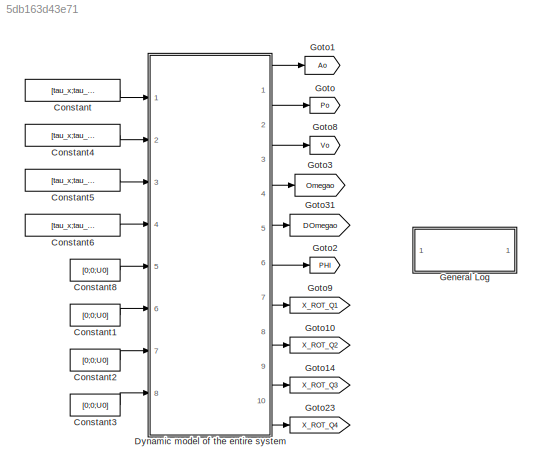
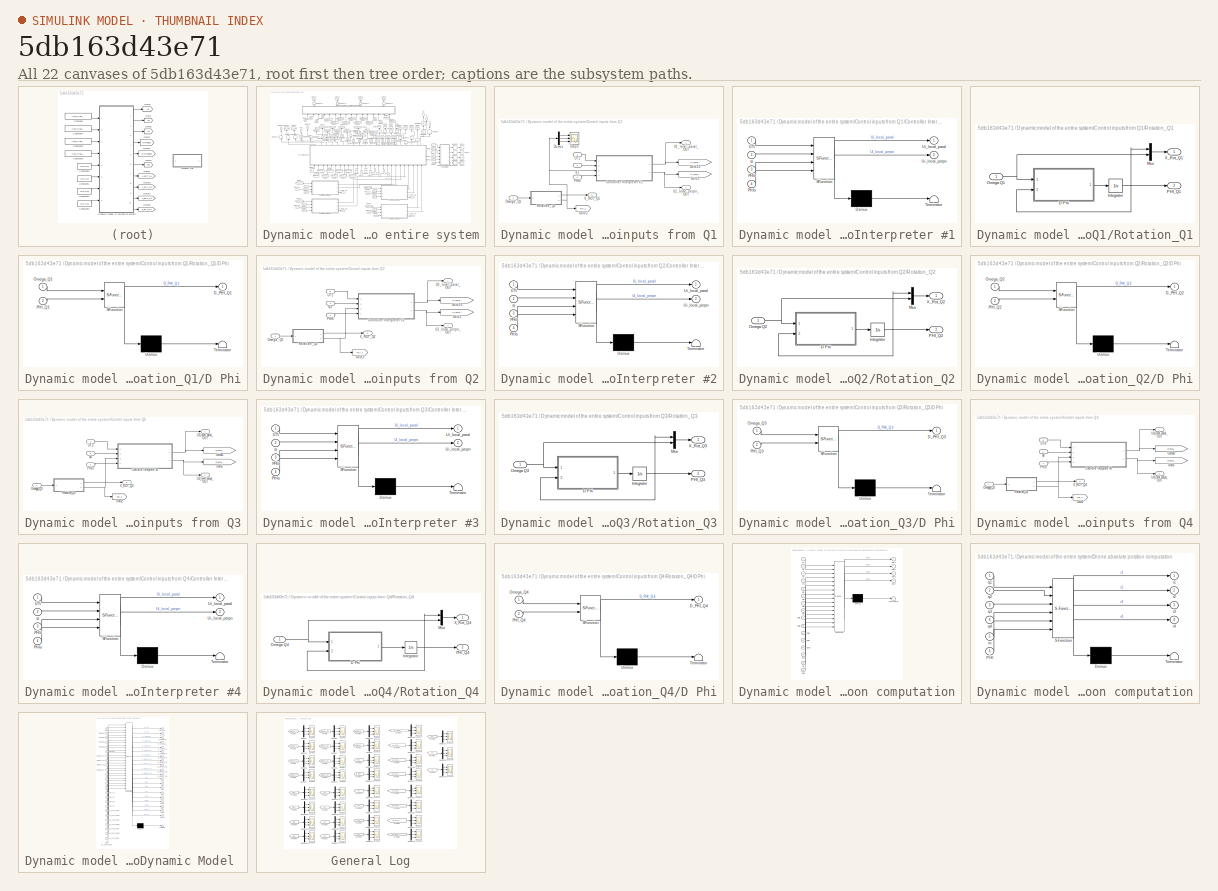
[diagram: thumbnail index - all 22 canvases of the model, root first then tree order]
MODEL slx_5db163d43e71
KIND model
CONFIG AbsTol = auto
CONFIG EnableMultiTasking = off
CONFIG FixedStep = 0.001
CONFIG InitFcn = Colab_4Quad_model_02_const
CONFIG MaxStep = auto
CONFIG MinStep = auto
CONFIG RelTol = 1e-3
CONFIG SampleTimeConstraint = Unconstrained
CONFIG Solver = FixedStepAuto
CONFIG SolverName = FixedStepAuto
CONFIG StartTime = 0.0
CONFIG StopTime = 1000
BLOCK [Constant] Constant
  Value = [tau_x;tau_y;tau_z]
  VectorParams1D = off
BLOCK [Constant] Constant1
  Value = [0;0;U0]
BLOCK [Constant] Constant2
  Value = [0;0;U0]
BLOCK [Constant] Constant3
  Value = [0;0;U0]
BLOCK [Constant] Constant4
  Value = [tau_x;tau_y;tau_z]
  VectorParams1D = off
BLOCK [Constant] Constant5
  Value = [tau_x;tau_y;tau_z]
  VectorParams1D = off
BLOCK [Constant] Constant6
  Value = [tau_x;tau_y;tau_z]
  VectorParams1D = off
BLOCK [Constant] Constant8
  Value = [0;0;U0]
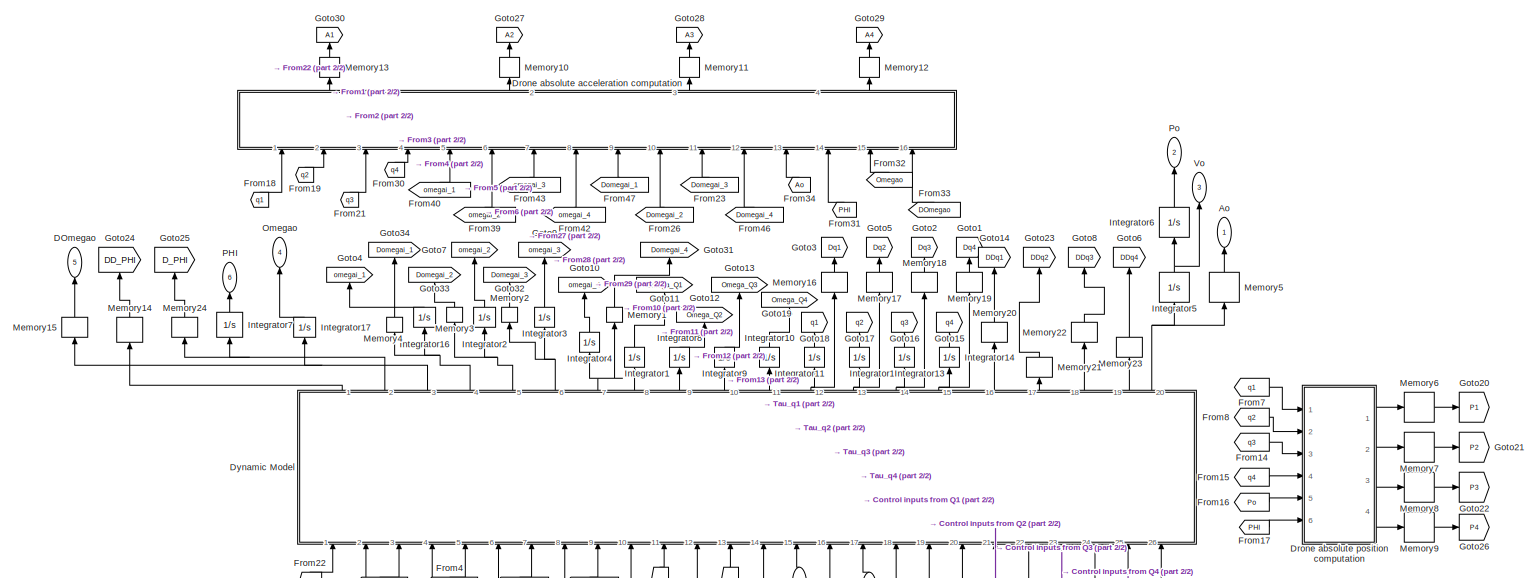
[diagram: Dynamic model of the entire system - part 1/2, full width, top band]
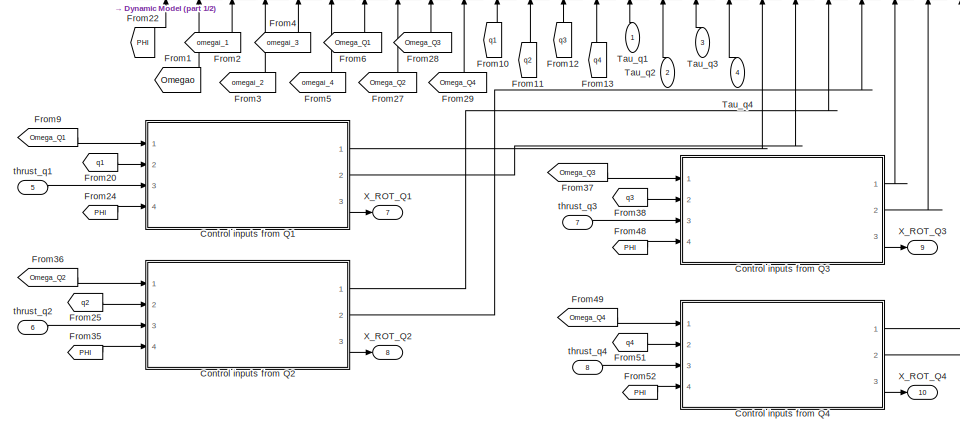
[diagram: Dynamic model of the entire system - part 2/2, bottom center region]
BLOCK [SubSystem] Dynamic model of the entire system
  Ports = [8, 10]
  RequestExecContextInheritance = off
  Variant = off
BLOCK [Outport] Dynamic model of the entire system/Ao
  IconDisplay = Port number
BLOCK [SubSystem] Dynamic model of the entire system/Control inputs from Q1
  Ports = [4, 3]
  RequestExecContextInheritance = off
  Variant = off
BLOCK [SubSystem] Dynamic model of the entire system/Control inputs from Q1/Controller Interpreter #1
  ErrorFcn = Stateflow.Translate.translate
  PermitHierarchicalResolution = ExplicitOnly
  Ports = [4, 2]
  RequestExecContextInheritance = off
  SFBlockType = MATLAB Function
  TreatAsAtomicUnit = on
  Variant = off
BLOCK [Demux] Dynamic model of the entire system/Control inputs from Q1/Controller Interpreter #1/ Demux 
  Outputs = 1
  Ports = [1, 1]
BLOCK [S-Function] Dynamic model of the entire system/Control inputs from Q1/Controller Interpreter #1/ SFunction 
  EnableBusSupport = on
  FunctionName = sf_sfun
  PortCounts = [4 3]
  Ports = [4, 3]
  SFcnIsStateOwnerBlock = off
  SFunctionDeploymentMode = off
  Tag = Stateflow S-Function Colab_4Quad_model_02 55
BLOCK [Terminator] Dynamic model of the entire system/Control inputs from Q1/Controller Interpreter #1/ Terminator 
BLOCK [Inport] Dynamic model of the entire system/Control inputs from Q1/Controller Interpreter #1/PHIi
  IconDisplay = Port number
  Port = 3
BLOCK [Inport] Dynamic model of the entire system/Control inputs from Q1/Controller Interpreter #1/PHIo
  IconDisplay = Port number
  Port = 4
BLOCK [Inport] Dynamic model of the entire system/Control inputs from Q1/Controller Interpreter #1/UTi
  IconDisplay = Port number
BLOCK [Outport] Dynamic model of the entire system/Control inputs from Q1/Controller Interpreter #1/Ui_local_paral
  IconDisplay = Port number
BLOCK [Outport] Dynamic model of the entire system/Control inputs from Q1/Controller Interpreter #1/Ui_local_perpn
  IconDisplay = Port number
  Port = 2
BLOCK [Inport] Dynamic model of the entire system/Control inputs from Q1/Controller Interpreter #1/qi
  IconDisplay = Port number
  Port = 2
BLOCK [Demux] Dynamic model of the entire system/Control inputs from Q1/Demux
  DisplayOption = bar
  Outputs = 3
  Ports = [1, 3]
BLOCK [Goto] Dynamic model of the entire system/Control inputs from Q1/Goto1
  GotoTag = U1_local_perpn_ACT
  TagVisibility = global
BLOCK [Goto] Dynamic model of the entire system/Control inputs from Q1/Goto2
  GotoTag = PHI_1
  TagVisibility = global
BLOCK [Goto] Dynamic model of the entire system/Control inputs from Q1/Goto20
  GotoTag = U1_local_paral_ACT
  TagVisibility = global
BLOCK [Inport] Dynamic model of the entire system/Control inputs from Q1/Omega_Q1
  IconDisplay = Port number
BLOCK [Inport] Dynamic model of the entire system/Control inputs from Q1/PHIo
  IconDisplay = Port number
  Port = 4
BLOCK [SubSystem] Dynamic model of the entire system/Control inputs from Q1/Rotation_Q1
  Ports = [1, 2]
  RequestExecContextInheritance = off
  Variant = off
BLOCK [SubSystem] Dynamic model of the entire system/Control inputs from Q1/Rotation_Q1/D Phi
  ErrorFcn = Stateflow.Translate.translate
  PermitHierarchicalResolution = ExplicitOnly
  Ports = [2, 1]
  RequestExecContextInheritance = off
  SFBlockType = MATLAB Function
  TreatAsAtomicUnit = on
  Variant = off
BLOCK [Demux] Dynamic model of the entire system/Control inputs from Q1/Rotation_Q1/D Phi/ Demux 
  Outputs = 1
  Ports = [1, 1]
BLOCK [S-Function] Dynamic model of the entire system/Control inputs from Q1/Rotation_Q1/D Phi/ SFunction 
  EnableBusSupport = on
  FunctionName = sf_sfun
  PortCounts = [2 2]
  Ports = [2, 2]
  SFcnIsStateOwnerBlock = off
  SFunctionDeploymentMode = off
  Tag = Stateflow S-Function Colab_4Quad_model_02 2
BLOCK [Terminator] Dynamic model of the entire system/Control inputs from Q1/Rotation_Q1/D Phi/ Terminator 
BLOCK [Outport] Dynamic model of the entire system/Control inputs from Q1/Rotation_Q1/D Phi/D_PHI_Q1
  IconDisplay = Port number
BLOCK [Inport] Dynamic model of the entire system/Control inputs from Q1/Rotation_Q1/D Phi/Omega_Q1
  IconDisplay = Port number
BLOCK [Inport] Dynamic model of the entire system/Control inputs from Q1/Rotation_Q1/D Phi/PHI_Q1
  IconDisplay = Port number
  Port = 2
BLOCK [Integrator] Dynamic model of the entire system/Control inputs from Q1/Rotation_Q1/Integrator
  InitialCondition = zeros(3,1)
  Ports = [1, 1]
BLOCK [Mux] Dynamic model of the entire system/Control inputs from Q1/Rotation_Q1/Mux
  DisplayOption = bar
  Inputs = 2
  Ports = [2, 1]
BLOCK [Inport] Dynamic model of the entire system/Control inputs from Q1/Rotation_Q1/Omega Q1
  IconDisplay = Port number
BLOCK [Outport] Dynamic model of the entire system/Control inputs from Q1/Rotation_Q1/PHI_Q1
  IconDisplay = Port number
  Port = 2
BLOCK [Outport] Dynamic model of the entire system/Control inputs from Q1/Rotation_Q1/X_Rot_Q1
  IconDisplay = Port number
BLOCK [Scope] Dynamic model of the entire system/Control inputs from Q1/Scope
  NumInputPorts = 3
  Ports = [3]
  ScopeSpecificationString = Simulink.scopes.TimeScopeBlockCfg('CurrentConfiguration', extmgr.ConfigurationSet(extmgr.Configuration('Core','General UI',true),extmgr.Configuration('Core','Source UI',true),extmgr.Configuration('Sources','WiredSimulink',true,'DataLoggingVariableName','ScopeData9'),extmgr.Configuration('Visuals','Time Domain',true,'SerializedDisplays',{struct('MinYLimReal','-0.0000000000006','MaxYLimReal','0.0000...<+2806ch>
BLOCK [Outport] Dynamic model of the entire system/Control inputs from Q1/U1_local_paral_OUT
  IconDisplay = Port number
BLOCK [Outport] Dynamic model of the entire system/Control inputs from Q1/U1_local_perpn_OUT
  IconDisplay = Port number
  Port = 2
BLOCK [Inport] Dynamic model of the entire system/Control inputs from Q1/UT1
  IconDisplay = Port number
  Port = 3
BLOCK [Outport] Dynamic model of the entire system/Control inputs from Q1/X_ROT_Q1
  IconDisplay = Port number
  Port = 3
BLOCK [Inport] Dynamic model of the entire system/Control inputs from Q1/q1
  IconDisplay = Port number
  Port = 2
BLOCK [SubSystem] Dynamic model of the entire system/Control inputs from Q2
  Ports = [4, 3]
  RequestExecContextInheritance = off
  Variant = off
BLOCK [SubSystem] Dynamic model of the entire system/Control inputs from Q2/Controller Interpreter #2
  ErrorFcn = Stateflow.Translate.translate
  PermitHierarchicalResolution = ExplicitOnly
  Ports = [4, 2]
  RequestExecContextInheritance = off
  SFBlockType = MATLAB Function
  TreatAsAtomicUnit = on
  Variant = off
BLOCK [Demux] Dynamic model of the entire system/Control inputs from Q2/Controller Interpreter #2/ Demux 
  Outputs = 1
  Ports = [1, 1]
BLOCK [S-Function] Dynamic model of the entire system/Control inputs from Q2/Controller Interpreter #2/ SFunction 
  EnableBusSupport = on
  FunctionName = sf_sfun
  PortCounts = [4 3]
  Ports = [4, 3]
  SFcnIsStateOwnerBlock = off
  SFunctionDeploymentMode = off
  Tag = Stateflow S-Function Colab_4Quad_model_02 59
BLOCK [Terminator] Dynamic model of the entire system/Control inputs from Q2/Controller Interpreter #2/ Terminator 
BLOCK [Inport] Dynamic model of the entire system/Control inputs from Q2/Controller Interpreter #2/PHIi
  IconDisplay = Port number
  Port = 3
BLOCK [Inport] Dynamic model of the entire system/Control inputs from Q2/Controller Interpreter #2/PHIo
  IconDisplay = Port number
  Port = 4
BLOCK [Inport] Dynamic model of the entire system/Control inputs from Q2/Controller Interpreter #2/UTi
  IconDisplay = Port number
BLOCK [Outport] Dynamic model of the entire system/Control inputs from Q2/Controller Interpreter #2/Ui_local_paral
  IconDisplay = Port number
BLOCK [Outport] Dynamic model of the entire system/Control inputs from Q2/Controller Interpreter #2/Ui_local_perpn
  IconDisplay = Port number
  Port = 2
BLOCK [Inport] Dynamic model of the entire system/Control inputs from Q2/Controller Interpreter #2/qi
  IconDisplay = Port number
  Port = 2
BLOCK [Goto] Dynamic model of the entire system/Control inputs from Q2/Goto1
  GotoTag = U2_local_perpn_ACT
  TagVisibility = global
BLOCK [Goto] Dynamic model of the entire system/Control inputs from Q2/Goto2
  GotoTag = PHI_2
  TagVisibility = global
BLOCK [Goto] Dynamic model of the entire system/Control inputs from Q2/Goto20
  GotoTag = U2_local_paral_ACT
  TagVisibility = global
BLOCK [Inport] Dynamic model of the entire system/Control inputs from Q2/Omega_Q2
  IconDisplay = Port number
BLOCK [Inport] Dynamic model of the entire system/Control inputs from Q2/PHIo
  IconDisplay = Port number
  Port = 4
BLOCK [SubSystem] Dynamic model of the entire system/Control inputs from Q2/Rotation_Q2
  Ports = [1, 2]
  RequestExecContextInheritance = off
  Variant = off
BLOCK [SubSystem] Dynamic model of the entire system/Control inputs from Q2/Rotation_Q2/D Phi
  ErrorFcn = Stateflow.Translate.translate
  PermitHierarchicalResolution = ExplicitOnly
  Ports = [2, 1]
  RequestExecContextInheritance = off
  SFBlockType = MATLAB Function
  TreatAsAtomicUnit = on
  Variant = off
BLOCK [Demux] Dynamic model of the entire system/Control inputs from Q2/Rotation_Q2/D Phi/ Demux 
  Outputs = 1
  Ports = [1, 1]
BLOCK [S-Function] Dynamic model of the entire system/Control inputs from Q2/Rotation_Q2/D Phi/ SFunction 
  EnableBusSupport = on
  FunctionName = sf_sfun
  PortCounts = [2 2]
  Ports = [2, 2]
  SFcnIsStateOwnerBlock = off
  SFunctionDeploymentMode = off
  Tag = Stateflow S-Function Colab_4Quad_model_02 14
BLOCK [Terminator] Dynamic model of the entire system/Control inputs from Q2/Rotation_Q2/D Phi/ Terminator 
BLOCK [Outport] Dynamic model of the entire system/Control inputs from Q2/Rotation_Q2/D Phi/D_PHI_Q2
  IconDisplay = Port number
BLOCK [Inport] Dynamic model of the entire system/Control inputs from Q2/Rotation_Q2/D Phi/Omega_Q2
  IconDisplay = Port number
BLOCK [Inport] Dynamic model of the entire system/Control inputs from Q2/Rotation_Q2/D Phi/PHI_Q2
  IconDisplay = Port number
  Port = 2
BLOCK [Integrator] Dynamic model of the entire system/Control inputs from Q2/Rotation_Q2/Integrator
  InitialCondition = zeros(3,1)
  Ports = [1, 1]
BLOCK [Mux] Dynamic model of the entire system/Control inputs from Q2/Rotation_Q2/Mux
  DisplayOption = bar
  Inputs = 2
  Ports = [2, 1]
BLOCK [Inport] Dynamic model of the entire system/Control inputs from Q2/Rotation_Q2/Omega Q2
  IconDisplay = Port number
BLOCK [Outport] Dynamic model of the entire system/Control inputs from Q2/Rotation_Q2/PHI_Q2
  IconDisplay = Port number
  Port = 2
BLOCK [Outport] Dynamic model of the entire system/Control inputs from Q2/Rotation_Q2/X_Rot_Q2
  IconDisplay = Port number
BLOCK [Outport] Dynamic model of the entire system/Control inputs from Q2/U2_local_paral_OUT
  IconDisplay = Port number
BLOCK [Outport] Dynamic model of the entire system/Control inputs from Q2/U2_local_perpn_OUT
  IconDisplay = Port number
  Port = 2
BLOCK [Inport] Dynamic model of the entire system/Control inputs from Q2/UT2
  IconDisplay = Port number
  Port = 3
BLOCK [Outport] Dynamic model of the entire system/Control inputs from Q2/X_ROT_Q2
  IconDisplay = Port number
  Port = 3
BLOCK [Inport] Dynamic model of the entire system/Control inputs from Q2/q2
  IconDisplay = Port number
  Port = 2
BLOCK [SubSystem] Dynamic model of the entire system/Control inputs from Q3
  Ports = [4, 3]
  RequestExecContextInheritance = off
  Variant = off
BLOCK [SubSystem] Dynamic model of the entire system/Control inputs from Q3/Controller Interpreter #3
  ErrorFcn = Stateflow.Translate.translate
  PermitHierarchicalResolution = ExplicitOnly
  Ports = [4, 2]
  RequestExecContextInheritance = off
  SFBlockType = MATLAB Function
  TreatAsAtomicUnit = on
  Variant = off
BLOCK [Demux] Dynamic model of the entire system/Control inputs from Q3/Controller Interpreter #3/ Demux 
  Outputs = 1
  Ports = [1, 1]
BLOCK [S-Function] Dynamic model of the entire system/Control inputs from Q3/Controller Interpreter #3/ SFunction 
  EnableBusSupport = on
  FunctionName = sf_sfun
  PortCounts = [4 3]
  Ports = [4, 3]
  SFcnIsStateOwnerBlock = off
  SFunctionDeploymentMode = off
  Tag = Stateflow S-Function Colab_4Quad_model_02 60
BLOCK [Terminator] Dynamic model of the entire system/Control inputs from Q3/Controller Interpreter #3/ Terminator 
BLOCK [Inport] Dynamic model of the entire system/Control inputs from Q3/Controller Interpreter #3/PHIi
  IconDisplay = Port number
  Port = 3
BLOCK [Inport] Dynamic model of the entire system/Control inputs from Q3/Controller Interpreter #3/PHIo
  IconDisplay = Port number
  Port = 4
BLOCK [Inport] Dynamic model of the entire system/Control inputs from Q3/Controller Interpreter #3/UTi
  IconDisplay = Port number
BLOCK [Outport] Dynamic model of the entire system/Control inputs from Q3/Controller Interpreter #3/Ui_local_paral
  IconDisplay = Port number
BLOCK [Outport] Dynamic model of the entire system/Control inputs from Q3/Controller Interpreter #3/Ui_local_perpn
  IconDisplay = Port number
  Port = 2
BLOCK [Inport] Dynamic model of the entire system/Control inputs from Q3/Controller Interpreter #3/qi
  IconDisplay = Port number
  Port = 2
BLOCK [Goto] Dynamic model of the entire system/Control inputs from Q3/Goto1
  GotoTag = U3_local_perpn_ACT
  TagVisibility = global
BLOCK [Goto] Dynamic model of the entire system/Control inputs from Q3/Goto2
  GotoTag = PHI_3
  TagVisibility = global
BLOCK [Goto] Dynamic model of the entire system/Control inputs from Q3/Goto20
  GotoTag = U3_local_paral_ACT
  TagVisibility = global
BLOCK [Inport] Dynamic model of the entire system/Control inputs from Q3/Omega_Q3
  IconDisplay = Port number
BLOCK [Inport] Dynamic model of the entire system/Control inputs from Q3/PHIo
  IconDisplay = Port number
  Port = 4
BLOCK [SubSystem] Dynamic model of the entire system/Control inputs from Q3/Rotation_Q3
  Ports = [1, 2]
  RequestExecContextInheritance = off
  Variant = off
BLOCK [SubSystem] Dynamic model of the entire system/Control inputs from Q3/Rotation_Q3/D Phi
  ErrorFcn = Stateflow.Translate.translate
  PermitHierarchicalResolution = ExplicitOnly
  Ports = [2, 1]
  RequestExecContextInheritance = off
  SFBlockType = MATLAB Function
  TreatAsAtomicUnit = on
  Variant = off
BLOCK [Demux] Dynamic model of the entire system/Control inputs from Q3/Rotation_Q3/D Phi/ Demux 
  Outputs = 1
  Ports = [1, 1]
BLOCK [S-Function] Dynamic model of the entire system/Control inputs from Q3/Rotation_Q3/D Phi/ SFunction 
  EnableBusSupport = on
  FunctionName = sf_sfun
  PortCounts = [2 2]
  Ports = [2, 2]
  SFcnIsStateOwnerBlock = off
  SFunctionDeploymentMode = off
  Tag = Stateflow S-Function Colab_4Quad_model_02 20
BLOCK [Terminator] Dynamic model of the entire system/Control inputs from Q3/Rotation_Q3/D Phi/ Terminator 
BLOCK [Outport] Dynamic model of the entire system/Control inputs from Q3/Rotation_Q3/D Phi/D_PHI_Q3
  IconDisplay = Port number
BLOCK [Inport] Dynamic model of the entire system/Control inputs from Q3/Rotation_Q3/D Phi/Omega_Q3
  IconDisplay = Port number
BLOCK [Inport] Dynamic model of the entire system/Control inputs from Q3/Rotation_Q3/D Phi/PHI_Q3
  IconDisplay = Port number
  Port = 2
BLOCK [Integrator] Dynamic model of the entire system/Control inputs from Q3/Rotation_Q3/Integrator
  InitialCondition = zeros(3,1)
  Ports = [1, 1]
BLOCK [Mux] Dynamic model of the entire system/Control inputs from Q3/Rotation_Q3/Mux
  DisplayOption = bar
  Inputs = 2
  Ports = [2, 1]
BLOCK [Inport] Dynamic model of the entire system/Control inputs from Q3/Rotation_Q3/Omega Q3
  IconDisplay = Port number
BLOCK [Outport] Dynamic model of the entire system/Control inputs from Q3/Rotation_Q3/PHI_Q3
  IconDisplay = Port number
  Port = 2
BLOCK [Outport] Dynamic model of the entire system/Control inputs from Q3/Rotation_Q3/X_Rot_Q3
  IconDisplay = Port number
BLOCK [Outport] Dynamic model of the entire system/Control inputs from Q3/U3_local_paral_OUT
  IconDisplay = Port number
BLOCK [Outport] Dynamic model of the entire system/Control inputs from Q3/U3_local_perpn_OUT
  IconDisplay = Port number
  Port = 2
BLOCK [Inport] Dynamic model of the entire system/Control inputs from Q3/UT3
  IconDisplay = Port number
  Port = 3
BLOCK [Outport] Dynamic model of the entire system/Control inputs from Q3/X_ROT_Q3
  IconDisplay = Port number
  Port = 3
BLOCK [Inport] Dynamic model of the entire system/Control inputs from Q3/q3
  IconDisplay = Port number
  Port = 2
BLOCK [SubSystem] Dynamic model of the entire system/Control inputs from Q4
  Ports = [4, 3]
  RequestExecContextInheritance = off
  Variant = off
BLOCK [SubSystem] Dynamic model of the entire system/Control inputs from Q4/Controller Interpreter #4
  ErrorFcn = Stateflow.Translate.translate
  PermitHierarchicalResolution = ExplicitOnly
  Ports = [4, 2]
  RequestExecContextInheritance = off
  SFBlockType = MATLAB Function
  TreatAsAtomicUnit = on
  Variant = off
BLOCK [Demux] Dynamic model of the entire system/Control inputs from Q4/Controller Interpreter #4/ Demux 
  Outputs = 1
  Ports = [1, 1]
BLOCK [S-Function] Dynamic model of the entire system/Control inputs from Q4/Controller Interpreter #4/ SFunction 
  EnableBusSupport = on
  FunctionName = sf_sfun
  PortCounts = [4 3]
  Ports = [4, 3]
  SFcnIsStateOwnerBlock = off
  SFunctionDeploymentMode = off
  Tag = Stateflow S-Function Colab_4Quad_model_02 61
BLOCK [Terminator] Dynamic model of the entire system/Control inputs from Q4/Controller Interpreter #4/ Terminator 
BLOCK [Inport] Dynamic model of the entire system/Control inputs from Q4/Controller Interpreter #4/PHIi
  IconDisplay = Port number
  Port = 3
BLOCK [Inport] Dynamic model of the entire system/Control inputs from Q4/Controller Interpreter #4/PHIo
  IconDisplay = Port number
  Port = 4
BLOCK [Inport] Dynamic model of the entire system/Control inputs from Q4/Controller Interpreter #4/UTi
  IconDisplay = Port number
BLOCK [Outport] Dynamic model of the entire system/Control inputs from Q4/Controller Interpreter #4/Ui_local_paral
  IconDisplay = Port number
BLOCK [Outport] Dynamic model of the entire system/Control inputs from Q4/Controller Interpreter #4/Ui_local_perpn
  IconDisplay = Port number
  Port = 2
BLOCK [Inport] Dynamic model of the entire system/Control inputs from Q4/Controller Interpreter #4/qi
  IconDisplay = Port number
  Port = 2
BLOCK [Goto] Dynamic model of the entire system/Control inputs from Q4/Goto1
  GotoTag = U4_local_perpn_ACT
  TagVisibility = global
BLOCK [Goto] Dynamic model of the entire system/Control inputs from Q4/Goto2
  GotoTag = PHI_4
  TagVisibility = global
BLOCK [Goto] Dynamic model of the entire system/Control inputs from Q4/Goto20
  GotoTag = U4_local_paral_ACT
  TagVisibility = global
BLOCK [Inport] Dynamic model of the entire system/Control inputs from Q4/Omega_Q4
  IconDisplay = Port number
BLOCK [Inport] Dynamic model of the entire system/Control inputs from Q4/PHIo
  IconDisplay = Port number
  Port = 4
BLOCK [SubSystem] Dynamic model of the entire system/Control inputs from Q4/Rotation_Q4
  Ports = [1, 2]
  RequestExecContextInheritance = off
  Variant = off
BLOCK [SubSystem] Dynamic model of the entire system/Control inputs from Q4/Rotation_Q4/D Phi
  ErrorFcn = Stateflow.Translate.translate
  PermitHierarchicalResolution = ExplicitOnly
  Ports = [2, 1]
  RequestExecContextInheritance = off
  SFBlockType = MATLAB Function
  TreatAsAtomicUnit = on
  Variant = off
BLOCK [Demux] Dynamic model of the entire system/Control inputs from Q4/Rotation_Q4/D Phi/ Demux 
  Outputs = 1
  Ports = [1, 1]
BLOCK [S-Function] Dynamic model of the entire system/Control inputs from Q4/Rotation_Q4/D Phi/ SFunction 
  EnableBusSupport = on
  FunctionName = sf_sfun
  PortCounts = [2 2]
  Ports = [2, 2]
  SFcnIsStateOwnerBlock = off
  SFunctionDeploymentMode = off
  Tag = Stateflow S-Function Colab_4Quad_model_02 21
BLOCK [Terminator] Dynamic model of the entire system/Control inputs from Q4/Rotation_Q4/D Phi/ Terminator 
BLOCK [Outport] Dynamic model of the entire system/Control inputs from Q4/Rotation_Q4/D Phi/D_PHI_Q4
  IconDisplay = Port number
BLOCK [Inport] Dynamic model of the entire system/Control inputs from Q4/Rotation_Q4/D Phi/Omega_Q4
  IconDisplay = Port number
BLOCK [Inport] Dynamic model of the entire system/Control inputs from Q4/Rotation_Q4/D Phi/PHI_Q4
  IconDisplay = Port number
  Port = 2
BLOCK [Integrator] Dynamic model of the entire system/Control inputs from Q4/Rotation_Q4/Integrator
  InitialCondition = zeros(3,1)
  Ports = [1, 1]
BLOCK [Mux] Dynamic model of the entire system/Control inputs from Q4/Rotation_Q4/Mux
  DisplayOption = bar
  Inputs = 2
  Ports = [2, 1]
BLOCK [Inport] Dynamic model of the entire system/Control inputs from Q4/Rotation_Q4/Omega Q4
  IconDisplay = Port number
BLOCK [Outport] Dynamic model of the entire system/Control inputs from Q4/Rotation_Q4/PHI_Q4
  IconDisplay = Port number
  Port = 2
BLOCK [Outport] Dynamic model of the entire system/Control inputs from Q4/Rotation_Q4/X_Rot_Q4
  IconDisplay = Port number
BLOCK [Outport] Dynamic model of the entire system/Control inputs from Q4/U4_local_paral_OUT
  IconDisplay = Port number
BLOCK [Outport] Dynamic model of the entire system/Control inputs from Q4/U4_local_perpn_OUT
  IconDisplay = Port number
  Port = 2
BLOCK [Inport] Dynamic model of the entire system/Control inputs from Q4/UT4
  IconDisplay = Port number
  Port = 3
BLOCK [Outport] Dynamic model of the entire system/Control inputs from Q4/X_ROT_Q4
  IconDisplay = Port number
  Port = 3
BLOCK [Inport] Dynamic model of the entire system/Control inputs from Q4/q4
  IconDisplay = Port number
  Port = 2
BLOCK [Outport] Dynamic model of the entire system/DOmegao
  IconDisplay = Port number
  Port = 5
BLOCK [SubSystem] Dynamic model of the entire system/Drone absolute acceleration computation
  ErrorFcn = Stateflow.Translate.translate
  PermitHierarchicalResolution = ExplicitOnly
  Ports = [16, 4]
  RequestExecContextInheritance = off
  SFBlockType = MATLAB Function
  TreatAsAtomicUnit = on
  Variant = off
BLOCK [Demux] Dynamic model of the entire system/Drone absolute acceleration computation/ Demux 
  Outputs = 1
  Ports = [1, 1]
BLOCK [S-Function] Dynamic model of the entire system/Drone absolute acceleration computation/ SFunction 
  EnableBusSupport = on
  FunctionName = sf_sfun
  Parameters = All_rho,l
  PortCounts = [16 5]
  Ports = [16, 5]
  SFcnIsStateOwnerBlock = off
  SFunctionDeploymentMode = off
  Tag = Stateflow S-Function Colab_4Quad_model_02 49
BLOCK [Terminator] Dynamic model of the entire system/Drone absolute acceleration computation/ Terminator 
BLOCK [Outport] Dynamic model of the entire system/Drone absolute acceleration computation/DDr1
  IconDisplay = Port number
BLOCK [Outport] Dynamic model of the entire system/Drone absolute acceleration computation/DDr2
  IconDisplay = Port number
  Port = 2
BLOCK [Outport] Dynamic model of the entire system/Drone absolute acceleration computation/DDr3
  IconDisplay = Port number
  Port = 3
BLOCK [Outport] Dynamic model of the entire system/Drone absolute acceleration computation/DDr4
  IconDisplay = Port number
  Port = 4
BLOCK [Inport] Dynamic model of the entire system/Drone absolute acceleration computation/DDro
  IconDisplay = Port number
  Port = 13
BLOCK [Inport] Dynamic model of the entire system/Drone absolute acceleration computation/Dwi1
  IconDisplay = Port number
  Port = 9
BLOCK [Inport] Dynamic model of the entire system/Drone absolute acceleration computation/Dwi2
  IconDisplay = Port number
  Port = 10
BLOCK [Inport] Dynamic model of the entire system/Drone absolute acceleration computation/Dwi3
  IconDisplay = Port number
  Port = 11
BLOCK [Inport] Dynamic model of the entire system/Drone absolute acceleration computation/Dwi4
  IconDisplay = Port number
  Port = 12
BLOCK [Inport] Dynamic model of the entire system/Drone absolute acceleration computation/Dwo
  IconDisplay = Port number
  Port = 16
BLOCK [Inport] Dynamic model of the entire system/Drone absolute acceleration computation/PHI
  IconDisplay = Port number
  Port = 14
BLOCK [Inport] Dynamic model of the entire system/Drone absolute acceleration computation/q1
  IconDisplay = Port number
BLOCK [Inport] Dynamic model of the entire system/Drone absolute acceleration computation/q2
  IconDisplay = Port number
  Port = 2
BLOCK [Inport] Dynamic model of the entire system/Drone absolute acceleration computation/q3
  IconDisplay = Port number
  Port = 3
BLOCK [Inport] Dynamic model of the entire system/Drone absolute acceleration computation/q4
  IconDisplay = Port number
  Port = 4
BLOCK [Inport] Dynamic model of the entire system/Drone absolute acceleration computation/wi1
  IconDisplay = Port number
  Port = 5
BLOCK [Inport] Dynamic model of the entire system/Drone absolute acceleration computation/wi2
  IconDisplay = Port number
  Port = 6
BLOCK [Inport] Dynamic model of the entire system/Drone absolute acceleration computation/wi3
  IconDisplay = Port number
  Port = 7
BLOCK [Inport] Dynamic model of the entire system/Drone absolute acceleration computation/wi4
  IconDisplay = Port number
  Port = 8
BLOCK [Inport] Dynamic model of the entire system/Drone absolute acceleration computation/wo
  IconDisplay = Port number
  Port = 15
BLOCK [SubSystem] Dynamic model of the entire system/Drone absolute position computation
  ErrorFcn = Stateflow.Translate.translate
  PermitHierarchicalResolution = ExplicitOnly
  Ports = [6, 4]
  RequestExecContextInheritance = off
  SFBlockType = MATLAB Function
  TreatAsAtomicUnit = on
  Variant = off
BLOCK [Demux] Dynamic model of the entire system/Drone absolute position computation/ Demux 
  Outputs = 1
  Ports = [1, 1]
BLOCK [S-Function] Dynamic model of the entire system/Drone absolute position computation/ SFunction 
  EnableBusSupport = on
  FunctionName = sf_sfun
  Parameters = All_rho,l
  PortCounts = [6 5]
  Ports = [6, 5]
  SFcnIsStateOwnerBlock = off
  SFunctionDeploymentMode = off
  Tag = Stateflow S-Function Colab_4Quad_model_02 47
BLOCK [Terminator] Dynamic model of the entire system/Drone absolute position computation/ Terminator 
BLOCK [Inport] Dynamic model of the entire system/Drone absolute position computation/PHI
  IconDisplay = Port number
  Port = 6
BLOCK [Inport] Dynamic model of the entire system/Drone absolute position computation/q1
  IconDisplay = Port number
BLOCK [Inport] Dynamic model of the entire system/Drone absolute position computation/q2
  IconDisplay = Port number
  Port = 2
BLOCK [Inport] Dynamic model of the entire system/Drone absolute position computation/q3
  IconDisplay = Port number
  Port = 3
BLOCK [Inport] Dynamic model of the entire system/Drone absolute position computation/q4
  IconDisplay = Port number
  Port = 4
BLOCK [Outport] Dynamic model of the entire system/Drone absolute position computation/r1
  IconDisplay = Port number
BLOCK [Outport] Dynamic model of the entire system/Drone absolute position computation/r2
  IconDisplay = Port number
  Port = 2
BLOCK [Outport] Dynamic model of the entire system/Drone absolute position computation/r3
  IconDisplay = Port number
  Port = 3
BLOCK [Outport] Dynamic model of the entire system/Drone absolute position computation/r4
  IconDisplay = Port number
  Port = 4
BLOCK [Inport] Dynamic model of the entire system/Drone absolute position computation/ro
  IconDisplay = Port number
  Port = 5
BLOCK [SubSystem] Dynamic model of the entire system/Dynamic Model 
  ErrorFcn = Stateflow.Translate.translate
  PermitHierarchicalResolution = ExplicitOnly
  Ports = [26, 20]
  RequestExecContextInheritance = off
  SFBlockType = MATLAB Function
  TreatAsAtomicUnit = on
  Variant = off
BLOCK [Demux] Dynamic model of the entire system/Dynamic Model / Demux 
  Outputs = 1
  Ports = [1, 1]
BLOCK [S-Function] Dynamic model of the entire system/Dynamic Model / SFunction 
  EnableBusSupport = on
  FunctionName = sf_sfun
  Parameters = All_rho,Jo,Jq,M,g,l,m
  PortCounts = [26 21]
  Ports = [26, 21]
  SFcnIsStateOwnerBlock = off
  SFunctionDeploymentMode = off
  Tag = Stateflow S-Function Colab_4Quad_model_02 9
BLOCK [Terminator] Dynamic model of the entire system/Dynamic Model / Terminator 
BLOCK [Outport] Dynamic model of the entire system/Dynamic Model /DD_PHI
  IconDisplay = Port number
BLOCK [Outport] Dynamic model of the entire system/Dynamic Model /DD_Po
  IconDisplay = Port number
  Port = 20
BLOCK [Outport] Dynamic model of the entire system/Dynamic Model /DDq1
  IconDisplay = Port number
  Port = 16
BLOCK [Outport] Dynamic model of the entire system/Dynamic Model /DDq2
  IconDisplay = Port number
  Port = 17
BLOCK [Outport] Dynamic model of the entire system/Dynamic Model /DDq3
  IconDisplay = Port number
  Port = 18
BLOCK [Outport] Dynamic model of the entire system/Dynamic Model /DDq4
  IconDisplay = Port number
  Port = 19
BLOCK [Outport] Dynamic model of the entire system/Dynamic Model /D_Omega_Q1
  IconDisplay = Port number
  Port = 8
BLOCK [Outport] Dynamic model of the entire system/Dynamic Model /D_Omega_Q2
  IconDisplay = Port number
  Port = 9
BLOCK [Outport] Dynamic model of the entire system/Dynamic Model /D_Omega_Q3
  IconDisplay = Port number
  Port = 10
BLOCK [Outport] Dynamic model of the entire system/Dynamic Model /D_Omega_Q4
  IconDisplay = Port number
  Port = 11
BLOCK [Outport] Dynamic model of the entire system/Dynamic Model /D_Omegao
  IconDisplay = Port number
  Port = 3
BLOCK [Outport] Dynamic model of the entire system/Dynamic Model /D_PHI
  IconDisplay = Port number
  Port = 2
BLOCK [Outport] Dynamic model of the entire system/Dynamic Model /D_omegai_1
  IconDisplay = Port number
  Port = 4
BLOCK [Outport] Dynamic model of the entire system/Dynamic Model /D_omegai_2
  IconDisplay = Port number
  Port = 5
BLOCK [Outport] Dynamic model of the entire system/Dynamic Model /D_omegai_3
  IconDisplay = Port number
  Port = 6
BLOCK [Outport] Dynamic model of the entire system/Dynamic Model /D_omegai_4
  IconDisplay = Port number
  Port = 7
BLOCK [Outport] Dynamic model of the entire system/Dynamic Model /Dq1
  IconDisplay = Port number
  Port = 12
BLOCK [Outport] Dynamic model of the entire system/Dynamic Model /Dq2
  IconDisplay = Port number
  Port = 13
BLOCK [Outport] Dynamic model of the entire system/Dynamic Model /Dq3
  IconDisplay = Port number
  Port = 14
BLOCK [Outport] Dynamic model of the entire system/Dynamic Model /Dq4
  IconDisplay = Port number
  Port = 15
BLOCK [Inport] Dynamic model of the entire system/Dynamic Model /Omega_q1
  IconDisplay = Port number
  Port = 7
BLOCK [Inport] Dynamic model of the entire system/Dynamic Model /Omega_q2
  IconDisplay = Port number
  Port = 8
BLOCK [Inport] Dynamic model of the entire system/Dynamic Model /Omega_q3
  IconDisplay = Port number
  Port = 9
BLOCK [Inport] Dynamic model of the entire system/Dynamic Model /Omega_q4
  IconDisplay = Port number
  Port = 10
BLOCK [Inport] Dynamic model of the entire system/Dynamic Model /Omegao
  IconDisplay = Port number
  Port = 2
BLOCK [Inport] Dynamic model of the entire system/Dynamic Model /PHI
  IconDisplay = Port number
BLOCK [Inport] Dynamic model of the entire system/Dynamic Model /Tau_q1
  IconDisplay = Port number
  Port = 15
BLOCK [Inport] Dynamic model of the entire system/Dynamic Model /Tau_q2
  IconDisplay = Port number
  Port = 16
BLOCK [Inport] Dynamic model of the entire system/Dynamic Model /Tau_q3
  IconDisplay = Port number
  Port = 17
BLOCK [Inport] Dynamic model of the entire system/Dynamic Model /Tau_q4
  IconDisplay = Port number
  Port = 18
BLOCK [Inport] Dynamic model of the entire system/Dynamic Model /U1_local_paral
  IconDisplay = Port number
  Port = 19
BLOCK [Inport] Dynamic model of the entire system/Dynamic Model /U1_local_perpn
  IconDisplay = Port number
  Port = 20
BLOCK [Inport] Dynamic model of the entire system/Dynamic Model /U2_local_paral
  IconDisplay = Port number
  Port = 21
BLOCK [Inport] Dynamic model of the entire system/Dynamic Model /U2_local_perpn
  IconDisplay = Port number
  Port = 22
BLOCK [Inport] Dynamic model of the entire system/Dynamic Model /U3_local_paral
  IconDisplay = Port number
  Port = 23
BLOCK [Inport] Dynamic model of the entire system/Dynamic Model /U3_local_perpn
  IconDisplay = Port number
  Port = 24
BLOCK [Inport] Dynamic model of the entire system/Dynamic Model /U4_local_paral
  IconDisplay = Port number
  Port = 25
BLOCK [Inport] Dynamic model of the entire system/Dynamic Model /U4_local_perpn
  IconDisplay = Port number
  Port = 26
BLOCK [Inport] Dynamic model of the entire system/Dynamic Model /omegai1
  IconDisplay = Port number
  Port = 3
BLOCK [Inport] Dynamic model of the entire system/Dynamic Model /omegai2
  IconDisplay = Port number
  Port = 4
BLOCK [Inport] Dynamic model of the entire system/Dynamic Model /omegai3
  IconDisplay = Port number
  Port = 5
BLOCK [Inport] Dynamic model of the entire system/Dynamic Model /omegai4
  IconDisplay = Port number
  Port = 6
BLOCK [Inport] Dynamic model of the entire system/Dynamic Model /q1
  IconDisplay = Port number
  Port = 11
BLOCK [Inport] Dynamic model of the entire system/Dynamic Model /q2
  IconDisplay = Port number
  Port = 12
BLOCK [Inport] Dynamic model of the entire system/Dynamic Model /q3
  IconDisplay = Port number
  Port = 13
BLOCK [Inport] Dynamic model of the entire system/Dynamic Model /q4
  IconDisplay = Port number
  Port = 14
BLOCK [From] Dynamic model of the entire system/From1
  GotoTag = Omegao
  TagVisibility = global
BLOCK [From] Dynamic model of the entire system/From10
  GotoTag = q1
  TagVisibility = global
BLOCK [From] Dynamic model of the entire system/From11
  GotoTag = q2
  TagVisibility = global
BLOCK [From] Dynamic model of the entire system/From12
  GotoTag = q3
  TagVisibility = global
BLOCK [From] Dynamic model of the entire system/From13
  GotoTag = q4
  TagVisibility = global
BLOCK [From] Dynamic model of the entire system/From14
  GotoTag = q3
  TagVisibility = global
BLOCK [From] Dynamic model of the entire system/From15
  GotoTag = q4
  TagVisibility = global
BLOCK [From] Dynamic model of the entire system/From16
  GotoTag = Po
  TagVisibility = global
BLOCK [From] Dynamic model of the entire system/From17
  GotoTag = PHI
  TagVisibility = global
BLOCK [From] Dynamic model of the entire system/From18
  GotoTag = q1
  TagVisibility = global
BLOCK [From] Dynamic model of the entire system/From19
  GotoTag = q2
  TagVisibility = global
BLOCK [From] Dynamic model of the entire system/From2
  GotoTag = omegai_1
  TagVisibility = global
BLOCK [From] Dynamic model of the entire system/From20
  GotoTag = q1
  TagVisibility = global
BLOCK [From] Dynamic model of the entire system/From21
  GotoTag = q3
  TagVisibility = global
BLOCK [From] Dynamic model of the entire system/From22
  GotoTag = PHI
  TagVisibility = global
BLOCK [From] Dynamic model of the entire system/From23
  GotoTag = Domegai_3
  TagVisibility = global
BLOCK [From] Dynamic model of the entire system/From24
  GotoTag = PHI
  TagVisibility = global
BLOCK [From] Dynamic model of the entire system/From25
  GotoTag = q2
  TagVisibility = global
BLOCK [From] Dynamic model of the entire system/From26
  GotoTag = Domegai_2
  TagVisibility = global
BLOCK [From] Dynamic model of the entire system/From27
  GotoTag = Omega_Q2
  TagVisibility = global
BLOCK [From] Dynamic model of the entire system/From28
  GotoTag = Omega_Q3
  TagVisibility = global
BLOCK [From] Dynamic model of the entire system/From29
  GotoTag = Omega_Q4
  TagVisibility = global
BLOCK [From] Dynamic model of the entire system/From3
  GotoTag = omegai_2
  TagVisibility = global
BLOCK [From] Dynamic model of the entire system/From30
  GotoTag = q4
  TagVisibility = global
BLOCK [From] Dynamic model of the entire system/From31
  GotoTag = PHI
  TagVisibility = global
BLOCK [From] Dynamic model of the entire system/From32
  GotoTag = Omegao
  TagVisibility = global
BLOCK [From] Dynamic model of the entire system/From33
  GotoTag = DOmegao
  TagVisibility = global
BLOCK [From] Dynamic model of the entire system/From34
  GotoTag = Ao
  TagVisibility = global
BLOCK [From] Dynamic model of the entire system/From35
  GotoTag = PHI
  TagVisibility = global
BLOCK [From] Dynamic model of the entire system/From36
  GotoTag = Omega_Q2
  TagVisibility = global
BLOCK [From] Dynamic model of the entire system/From37
  GotoTag = Omega_Q3
  TagVisibility = global
BLOCK [From] Dynamic model of the entire system/From38
  GotoTag = q3
  TagVisibility = global
BLOCK [From] Dynamic model of the entire system/From39
  GotoTag = omegai_2
  TagVisibility = global
BLOCK [From] Dynamic model of the entire system/From4
  GotoTag = omegai_3
  TagVisibility = global
BLOCK [From] Dynamic model of the entire system/From40
  GotoTag = omegai_1
  TagVisibility = global
BLOCK [From] Dynamic model of the entire system/From42
  GotoTag = omegai_4
  TagVisibility = global
BLOCK [From] Dynamic model of the entire system/From43
  GotoTag = omegai_3
  TagVisibility = global
BLOCK [From] Dynamic model of the entire system/From46
  GotoTag = Domegai_4
  TagVisibility = global
BLOCK [From] Dynamic model of the entire system/From47
  GotoTag = Domegai_1
  TagVisibility = global
BLOCK [From] Dynamic model of the entire system/From48
  GotoTag = PHI
  TagVisibility = global
BLOCK [From] Dynamic model of the entire system/From49
  GotoTag = Omega_Q4
  TagVisibility = global
BLOCK [From] Dynamic model of the entire system/From5
  GotoTag = omegai_4
  TagVisibility = global
BLOCK [From] Dynamic model of the entire system/From51
  GotoTag = q4
  TagVisibility = global
BLOCK [From] Dynamic model of the entire system/From52
  GotoTag = PHI
  TagVisibility = global
BLOCK [From] Dynamic model of the entire system/From6
  GotoTag = Omega_Q1
  TagVisibility = global
BLOCK [From] Dynamic model of the entire system/From7
  GotoTag = q1
  TagVisibility = global
BLOCK [From] Dynamic model of the entire system/From8
  GotoTag = q2
  TagVisibility = global
BLOCK [From] Dynamic model of the entire system/From9
  GotoTag = Omega_Q1
  TagVisibility = global
BLOCK [Goto] Dynamic model of the entire system/Goto1
  GotoTag = Dq4
  TagVisibility = global
BLOCK [Goto] Dynamic model of the entire system/Goto10
  GotoTag = omegai_4
  TagVisibility = global
BLOCK [Goto] Dynamic model of the entire system/Goto11
  GotoTag = Omega_Q1
  TagVisibility = global
BLOCK [Goto] Dynamic model of the entire system/Goto12
  GotoTag = Omega_Q2
  TagVisibility = global
BLOCK [Goto] Dynamic model of the entire system/Goto13
  GotoTag = Omega_Q3
  TagVisibility = global
BLOCK [Goto] Dynamic model of the entire system/Goto14
  GotoTag = DDq1
  TagVisibility = global
BLOCK [Goto] Dynamic model of the entire system/Goto15
  GotoTag = q4
  TagVisibility = global
BLOCK [Goto] Dynamic model of the entire system/Goto16
  GotoTag = q3
  TagVisibility = global
BLOCK [Goto] Dynamic model of the entire system/Goto17
  GotoTag = q2
  TagVisibility = global
BLOCK [Goto] Dynamic model of the entire system/Goto18
  GotoTag = q1
  TagVisibility = global
BLOCK [Goto] Dynamic model of the entire system/Goto19
  GotoTag = Omega_Q4
  TagVisibility = global
BLOCK [Goto] Dynamic model of the entire system/Goto2
  GotoTag = Dq3
  TagVisibility = global
BLOCK [Goto] Dynamic model of the entire system/Goto20
  GotoTag = P1
  TagVisibility = global
BLOCK [Goto] Dynamic model of the entire system/Goto21
  GotoTag = P2
  TagVisibility = global
BLOCK [Goto] Dynamic model of the entire system/Goto22
  GotoTag = P3
  TagVisibility = global
BLOCK [Goto] Dynamic model of the entire system/Goto23
  GotoTag = DDq2
  TagVisibility = global
BLOCK [Goto] Dynamic model of the entire system/Goto24
  GotoTag = DD_PHI
  TagVisibility = global
BLOCK [Goto] Dynamic model of the entire system/Goto25
  GotoTag = D_PHI
  TagVisibility = global
BLOCK [Goto] Dynamic model of the entire system/Goto26
  GotoTag = P4
  TagVisibility = global
BLOCK [Goto] Dynamic model of the entire system/Goto27
  GotoTag = A2
  TagVisibility = global
BLOCK [Goto] Dynamic model of the entire system/Goto28
  GotoTag = A3
  TagVisibility = global
BLOCK [Goto] Dynamic model of the entire system/Goto29
  GotoTag = A4
  TagVisibility = global
BLOCK [Goto] Dynamic model of the entire system/Goto3
  GotoTag = Dq1
  TagVisibility = global
BLOCK [Goto] Dynamic model of the entire system/Goto30
  GotoTag = A1
  TagVisibility = global
BLOCK [Goto] Dynamic model of the entire system/Goto31
  GotoTag = Domegai_4
  TagVisibility = global
BLOCK [Goto] Dynamic model of the entire system/Goto32
  GotoTag = Domegai_3
  TagVisibility = global
BLOCK [Goto] Dynamic model of the entire system/Goto33
  GotoTag = Domegai_2
  TagVisibility = global
BLOCK [Goto] Dynamic model of the entire system/Goto34
  GotoTag = Domegai_1
  TagVisibility = global
BLOCK [Goto] Dynamic model of the entire system/Goto4
  GotoTag = omegai_1
  TagVisibility = global
BLOCK [Goto] Dynamic model of the entire system/Goto5
  GotoTag = Dq2
  TagVisibility = global
BLOCK [Goto] Dynamic model of the entire system/Goto6
  GotoTag = DDq4
  TagVisibility = global
BLOCK [Goto] Dynamic model of the entire system/Goto7
  GotoTag = omegai_2
  TagVisibility = global
BLOCK [Goto] Dynamic model of the entire system/Goto8
  GotoTag = DDq3
  TagVisibility = global
BLOCK [Goto] Dynamic model of the entire system/Goto9
  GotoTag = omegai_3
  TagVisibility = global
BLOCK [Integrator] Dynamic model of the entire system/Integrator1
  InitialCondition = zeros(3,1)
  Ports = [1, 1]
BLOCK [Integrator] Dynamic model of the entire system/Integrator10
  InitialCondition = zeros(3,1)
  Ports = [1, 1]
BLOCK [Integrator] Dynamic model of the entire system/Integrator11
  InitialCondition = [0;0;-1]
  Ports = [1, 1]
BLOCK [Integrator] Dynamic model of the entire system/Integrator12
  InitialCondition = [0;0;-1]
  Ports = [1, 1]
BLOCK [Integrator] Dynamic model of the entire system/Integrator13
  InitialCondition = [0;0;-1]
  Ports = [1, 1]
BLOCK [Integrator] Dynamic model of the entire system/Integrator14
  InitialCondition = [0;0;-1]
  Ports = [1, 1]
BLOCK [Integrator] Dynamic model of the entire system/Integrator16
  InitialCondition = zeros(3,1)
  Ports = [1, 1]
BLOCK [Integrator] Dynamic model of the entire system/Integrator17
  InitialCondition = zeros(3,1)
  Ports = [1, 1]
BLOCK [Integrator] Dynamic model of the entire system/Integrator2
  InitialCondition = zeros(3,1)
  Ports = [1, 1]
BLOCK [Integrator] Dynamic model of the entire system/Integrator3
  InitialCondition = zeros(3,1)
  Ports = [1, 1]
BLOCK [Integrator] Dynamic model of the entire system/Integrator4
  InitialCondition = zeros(3,1)
  Ports = [1, 1]
BLOCK [Integrator] Dynamic model of the entire system/Integrator5
  InitialCondition = zeros(3,1)
  Ports = [1, 1]
BLOCK [Integrator] Dynamic model of the entire system/Integrator6
  InitialCondition = [0;0;0]
  Ports = [1, 1]
BLOCK [Integrator] Dynamic model of the entire system/Integrator7
  InitialCondition = zeros(3,1)
  Ports = [1, 1]
BLOCK [Integrator] Dynamic model of the entire system/Integrator8
  InitialCondition = zeros(3,1)
  Ports = [1, 1]
BLOCK [Integrator] Dynamic model of the entire system/Integrator9
  InitialCondition = zeros(3,1)
  Ports = [1, 1]
BLOCK [Memory] Dynamic model of the entire system/Memory1
BLOCK [Memory] Dynamic model of the entire system/Memory10
BLOCK [Memory] Dynamic model of the entire system/Memory11
BLOCK [Memory] Dynamic model of the entire system/Memory12
BLOCK [Memory] Dynamic model of the entire system/Memory13
BLOCK [Memory] Dynamic model of the entire system/Memory14
BLOCK [Memory] Dynamic model of the entire system/Memory15
BLOCK [Memory] Dynamic model of the entire system/Memory16
BLOCK [Memory] Dynamic model of the entire system/Memory17
BLOCK [Memory] Dynamic model of the entire system/Memory18
BLOCK [Memory] Dynamic model of the entire system/Memory19
BLOCK [Memory] Dynamic model of the entire system/Memory2
BLOCK [Memory] Dynamic model of the entire system/Memory20
BLOCK [Memory] Dynamic model of the entire system/Memory21
BLOCK [Memory] Dynamic model of the entire system/Memory22
BLOCK [Memory] Dynamic model of the entire system/Memory23
BLOCK [Memory] Dynamic model of the entire system/Memory24
BLOCK [Memory] Dynamic model of the entire system/Memory3
BLOCK [Memory] Dynamic model of the entire system/Memory4
BLOCK [Memory] Dynamic model of the entire system/Memory5
BLOCK [Memory] Dynamic model of the entire system/Memory6
BLOCK [Memory] Dynamic model of the entire system/Memory7
BLOCK [Memory] Dynamic model of the entire system/Memory8
BLOCK [Memory] Dynamic model of the entire system/Memory9
BLOCK [Outport] Dynamic model of the entire system/Omegao
  IconDisplay = Port number
  Port = 4
BLOCK [Outport] Dynamic model of the entire system/PHI
  IconDisplay = Port number
  Port = 6
BLOCK [Outport] Dynamic model of the entire system/Po
  IconDisplay = Port number
  Port = 2
BLOCK [Inport] Dynamic model of the entire system/Tau_q1
  IconDisplay = Port number
BLOCK [Inport] Dynamic model of the entire system/Tau_q2
  IconDisplay = Port number
  Port = 2
BLOCK [Inport] Dynamic model of the entire system/Tau_q3
  IconDisplay = Port number
  Port = 3
BLOCK [Inport] Dynamic model of the entire system/Tau_q4
  IconDisplay = Port number
  Port = 4
BLOCK [Outport] Dynamic model of the entire system/Vo
  IconDisplay = Port number
  Port = 3
BLOCK [Outport] Dynamic model of the entire system/X_ROT_Q1
  IconDisplay = Port number
  Port = 7
BLOCK [Outport] Dynamic model of the entire system/X_ROT_Q2
  IconDisplay = Port number
  Port = 8
BLOCK [Outport] Dynamic model of the entire system/X_ROT_Q3
  IconDisplay = Port number
  Port = 9
BLOCK [Outport] Dynamic model of the entire system/X_ROT_Q4
  IconDisplay = Port number
  Port = 10
BLOCK [Inport] Dynamic model of the entire system/thrust_q1
  IconDisplay = Port number
  Port = 5
BLOCK [Inport] Dynamic model of the entire system/thrust_q2
  IconDisplay = Port number
  Port = 6
BLOCK [Inport] Dynamic model of the entire system/thrust_q3
  IconDisplay = Port number
  Port = 7
BLOCK [Inport] Dynamic model of the entire system/thrust_q4
  IconDisplay = Port number
  Port = 8
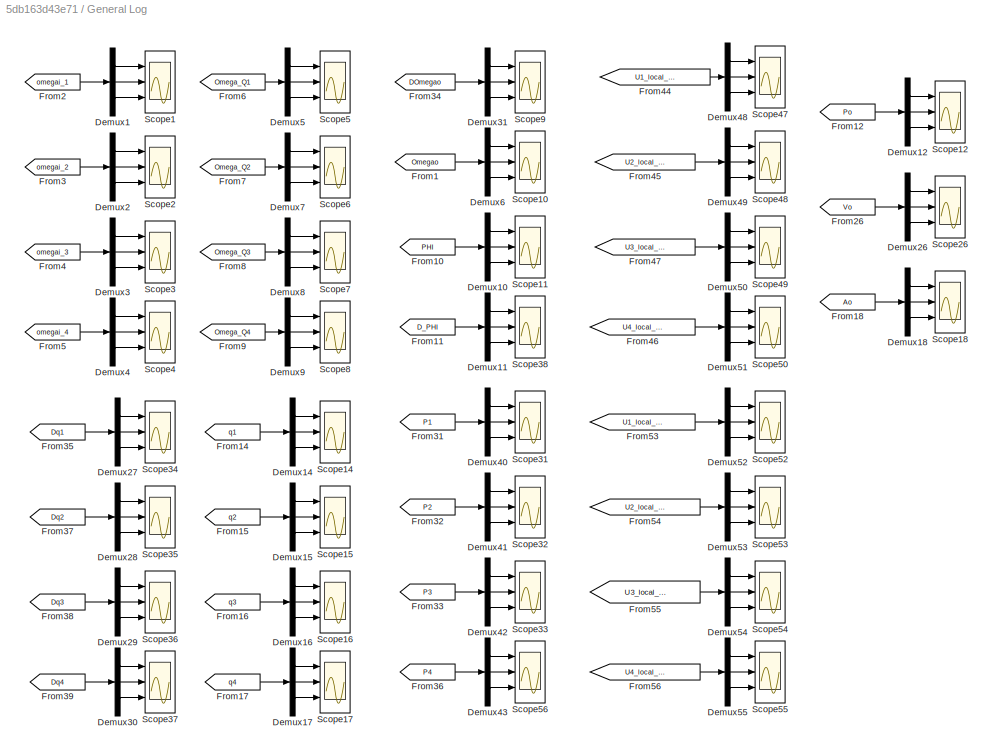
BLOCK [SubSystem] General Log
  Ports = []
  RequestExecContextInheritance = off
  Variant = off
BLOCK [Demux] General Log/Demux1
  DisplayOption = bar
  Outputs = 3
  Ports = [1, 3]
BLOCK [Demux] General Log/Demux10
  DisplayOption = bar
  Outputs = 3
  Ports = [1, 3]
BLOCK [Demux] General Log/Demux11
  DisplayOption = bar
  Outputs = 3
  Ports = [1, 3]
BLOCK [Demux] General Log/Demux12
  DisplayOption = bar
  Outputs = 3
  Ports = [1, 3]
BLOCK [Demux] General Log/Demux14
  DisplayOption = bar
  Outputs = 3
  Ports = [1, 3]
BLOCK [Demux] General Log/Demux15
  DisplayOption = bar
  Outputs = 3
  Ports = [1, 3]
BLOCK [Demux] General Log/Demux16
  DisplayOption = bar
  Outputs = 3
  Ports = [1, 3]
BLOCK [Demux] General Log/Demux17
  DisplayOption = bar
  Outputs = 3
  Ports = [1, 3]
BLOCK [Demux] General Log/Demux18
  DisplayOption = bar
  Outputs = 3
  Ports = [1, 3]
BLOCK [Demux] General Log/Demux2
  DisplayOption = bar
  Outputs = 3
  Ports = [1, 3]
BLOCK [Demux] General Log/Demux26
  DisplayOption = bar
  Outputs = 3
  Ports = [1, 3]
BLOCK [Demux] General Log/Demux27
  DisplayOption = bar
  Outputs = 3
  Ports = [1, 3]
BLOCK [Demux] General Log/Demux28
  DisplayOption = bar
  Outputs = 3
  Ports = [1, 3]
BLOCK [Demux] General Log/Demux29
  DisplayOption = bar
  Outputs = 3
  Ports = [1, 3]
BLOCK [Demux] General Log/Demux3
  DisplayOption = bar
  Outputs = 3
  Ports = [1, 3]
BLOCK [Demux] General Log/Demux30
  DisplayOption = bar
  Outputs = 3
  Ports = [1, 3]
BLOCK [Demux] General Log/Demux31
  DisplayOption = bar
  Outputs = 3
  Ports = [1, 3]
BLOCK [Demux] General Log/Demux4
  DisplayOption = bar
  Outputs = 3
  Ports = [1, 3]
BLOCK [Demux] General Log/Demux40
  DisplayOption = bar
  Outputs = 3
  Ports = [1, 3]
BLOCK [Demux] General Log/Demux41
  DisplayOption = bar
  Outputs = 3
  Ports = [1, 3]
BLOCK [Demux] General Log/Demux42
  DisplayOption = bar
  Outputs = 3
  Ports = [1, 3]
BLOCK [Demux] General Log/Demux43
  DisplayOption = bar
  Outputs = 3
  Ports = [1, 3]
BLOCK [Demux] General Log/Demux48
  DisplayOption = bar
  Outputs = 3
  Ports = [1, 3]
BLOCK [Demux] General Log/Demux49
  DisplayOption = bar
  Outputs = 3
  Ports = [1, 3]
BLOCK [Demux] General Log/Demux5
  DisplayOption = bar
  Outputs = 3
  Ports = [1, 3]
BLOCK [Demux] General Log/Demux50
  DisplayOption = bar
  Outputs = 3
  Ports = [1, 3]
BLOCK [Demux] General Log/Demux51
  DisplayOption = bar
  Outputs = 3
  Ports = [1, 3]
BLOCK [Demux] General Log/Demux52
  DisplayOption = bar
  Outputs = 3
  Ports = [1, 3]
BLOCK [Demux] General Log/Demux53
  DisplayOption = bar
  Outputs = 3
  Ports = [1, 3]
BLOCK [Demux] General Log/Demux54
  DisplayOption = bar
  Outputs = 3
  Ports = [1, 3]
BLOCK [Demux] General Log/Demux55
  DisplayOption = bar
  Outputs = 3
  Ports = [1, 3]
BLOCK [Demux] General Log/Demux6
  DisplayOption = bar
  Outputs = 3
  Ports = [1, 3]
BLOCK [Demux] General Log/Demux7
  DisplayOption = bar
  Outputs = 3
  Ports = [1, 3]
BLOCK [Demux] General Log/Demux8
  DisplayOption = bar
  Outputs = 3
  Ports = [1, 3]
BLOCK [Demux] General Log/Demux9
  DisplayOption = bar
  Outputs = 3
  Ports = [1, 3]
BLOCK [From] General Log/From1
  GotoTag = Omegao
  TagVisibility = global
BLOCK [From] General Log/From10
  GotoTag = PHI
  TagVisibility = global
BLOCK [From] General Log/From11
  GotoTag = D_PHI
  TagVisibility = global
BLOCK [From] General Log/From12
  GotoTag = Po
  TagVisibility = global
BLOCK [From] General Log/From14
  GotoTag = q1
  TagVisibility = global
BLOCK [From] General Log/From15
  GotoTag = q2
  TagVisibility = global
BLOCK [From] General Log/From16
  GotoTag = q3
  TagVisibility = global
BLOCK [From] General Log/From17
  GotoTag = q4
  TagVisibility = global
BLOCK [From] General Log/From18
  GotoTag = Ao
  TagVisibility = global
BLOCK [From] General Log/From2
  GotoTag = omegai_1
  TagVisibility = global
BLOCK [From] General Log/From26
  GotoTag = Vo
  TagVisibility = global
BLOCK [From] General Log/From3
  GotoTag = omegai_2
  TagVisibility = global
BLOCK [From] General Log/From31
  GotoTag = P1
  TagVisibility = global
BLOCK [From] General Log/From32
  GotoTag = P2
  TagVisibility = global
BLOCK [From] General Log/From33
  GotoTag = P3
  TagVisibility = global
BLOCK [From] General Log/From34
  GotoTag = DOmegao
  TagVisibility = global
BLOCK [From] General Log/From35
  GotoTag = Dq1
  TagVisibility = global
BLOCK [From] General Log/From36
  GotoTag = P4
  TagVisibility = global
BLOCK [From] General Log/From37
  GotoTag = Dq2
  TagVisibility = global
BLOCK [From] General Log/From38
  GotoTag = Dq3
  TagVisibility = global
BLOCK [From] General Log/From39
  GotoTag = Dq4
  TagVisibility = global
BLOCK [From] General Log/From4
  GotoTag = omegai_3
  TagVisibility = global
BLOCK [From] General Log/From44
  GotoTag = U1_local_perpn_ACT
  TagVisibility = global
BLOCK [From] General Log/From45
  GotoTag = U2_local_perpn_ACT
  TagVisibility = global
BLOCK [From] General Log/From46
  GotoTag = U4_local_perpn_ACT
  TagVisibility = global
BLOCK [From] General Log/From47
  GotoTag = U3_local_perpn_ACT
  TagVisibility = global
BLOCK [From] General Log/From5
  GotoTag = omegai_4
  TagVisibility = global
BLOCK [From] General Log/From53
  GotoTag = U1_local_paral_ACT
  TagVisibility = global
BLOCK [From] General Log/From54
  GotoTag = U2_local_paral_ACT
  TagVisibility = global
BLOCK [From] General Log/From55
  GotoTag = U3_local_paral_ACT
  TagVisibility = global
BLOCK [From] General Log/From56
  GotoTag = U4_local_paral_ACT
  TagVisibility = global
BLOCK [From] General Log/From6
  GotoTag = Omega_Q1
  TagVisibility = global
BLOCK [From] General Log/From7
  GotoTag = Omega_Q2
  TagVisibility = global
BLOCK [From] General Log/From8
  GotoTag = Omega_Q3
  TagVisibility = global
BLOCK [From] General Log/From9
  GotoTag = Omega_Q4
  TagVisibility = global
BLOCK [Scope] General Log/Scope1
  NumInputPorts = 3
  Ports = [3]
  ScopeSpecificationString = Simulink.scopes.TimeScopeBlockCfg('CurrentConfiguration', extmgr.ConfigurationSet(extmgr.Configuration('Core','General UI',true),extmgr.Configuration('Core','Source UI',true),extmgr.Configuration('Sources','WiredSimulink',true,'DataLoggingVariableName','omegai_1','DataLoggingSaveFormat','StructureWithTime','DataLogging',true),extmgr.Configuration('Visuals','Time Domain',true,'SerializedDisplays',{...<+2856ch>
BLOCK [Scope] General Log/Scope10
  NumInputPorts = 3
  Ports = [3]
  ScopeSpecificationString = Simulink.scopes.TimeScopeBlockCfg('CurrentConfiguration', extmgr.ConfigurationSet(extmgr.Configuration('Core','General UI',true),extmgr.Configuration('Core','Source UI',true),extmgr.Configuration('Sources','WiredSimulink',true,'DataLoggingVariableName','omega_o','DataLoggingSaveFormat','StructureWithTime','DataLogging',true),extmgr.Configuration('Visuals','Time Domain',true,'SerializedDisplays',{s...<+2820ch>
BLOCK [Scope] General Log/Scope11
  NumInputPorts = 3
  Ports = [3]
  ScopeSpecificationString = Simulink.scopes.TimeScopeBlockCfg('CurrentConfiguration', extmgr.ConfigurationSet(extmgr.Configuration('Core','General UI',true),extmgr.Configuration('Core','Source UI',true),extmgr.Configuration('Sources','WiredSimulink',true,'DataLoggingVariableName','ScopeData38','DataLoggingSaveFormat','StructureWithTime'),extmgr.Configuration('Visuals','Time Domain',true,'SerializedDisplays',{struct('MinYLimR...<+2801ch>
BLOCK [Scope] General Log/Scope12
  NumInputPorts = 3
  Ports = [3]
  ScopeSpecificationString = Simulink.scopes.TimeScopeBlockCfg('CurrentConfiguration', extmgr.ConfigurationSet(extmgr.Configuration('Core','General UI',true),extmgr.Configuration('Core','Source UI',true),extmgr.Configuration('Sources','WiredSimulink',true,'DataLoggingVariableName','Po','DataLoggingSaveFormat','StructureWithTime','DataLogging',true),extmgr.Configuration('Visuals','Time Domain',true,'SerializedDisplays',{struct...<+2835ch>
BLOCK [Scope] General Log/Scope14
  NumInputPorts = 3
  Ports = [3]
  ScopeSpecificationString = Simulink.scopes.TimeScopeBlockCfg('CurrentConfiguration', extmgr.ConfigurationSet(extmgr.Configuration('Core','General UI',true),extmgr.Configuration('Core','Source UI',true),extmgr.Configuration('Sources','WiredSimulink',true,'DataLoggingVariableName','q1','DataLogging',true,'DataLoggingSaveFormat','StructureWithTime'),extmgr.Configuration('Visuals','Time Domain',true,'SerializedDisplays',{struct...<+2794ch>
BLOCK [Scope] General Log/Scope15
  NumInputPorts = 3
  Ports = [3]
  ScopeSpecificationString = Simulink.scopes.TimeScopeBlockCfg('CurrentConfiguration', extmgr.ConfigurationSet(extmgr.Configuration('Core','General UI',true),extmgr.Configuration('Core','Source UI',true),extmgr.Configuration('Sources','WiredSimulink',true,'DataLoggingVariableName','q2','DataLogging',true,'DataLoggingSaveFormat','StructureWithTime'),extmgr.Configuration('Visuals','Time Domain',true,'SerializedDisplays',{struct...<+2831ch>
BLOCK [Scope] General Log/Scope16
  NumInputPorts = 3
  Ports = [3]
  ScopeSpecificationString = Simulink.scopes.TimeScopeBlockCfg('CurrentConfiguration', extmgr.ConfigurationSet(extmgr.Configuration('Core','General UI',true),extmgr.Configuration('Core','Source UI',true),extmgr.Configuration('Sources','WiredSimulink',true,'DataLoggingVariableName','q3','DataLogging',true,'DataLoggingSaveFormat','StructureWithTime'),extmgr.Configuration('Visuals','Time Domain',true,'SerializedDisplays',{struct...<+2823ch>
BLOCK [Scope] General Log/Scope17
  NumInputPorts = 3
  Ports = [3]
  ScopeSpecificationString = Simulink.scopes.TimeScopeBlockCfg('CurrentConfiguration', extmgr.ConfigurationSet(extmgr.Configuration('Core','General UI',true),extmgr.Configuration('Core','Source UI',true),extmgr.Configuration('Sources','WiredSimulink',true,'DataLoggingVariableName','q4','DataLogging',true,'DataLoggingSaveFormat','StructureWithTime'),extmgr.Configuration('Visuals','Time Domain',true,'SerializedDisplays',{struct...<+2829ch>
BLOCK [Scope] General Log/Scope18
  NumInputPorts = 3
  Ports = [3]
  ScopeSpecificationString = Simulink.scopes.TimeScopeBlockCfg('CurrentConfiguration', extmgr.ConfigurationSet(extmgr.Configuration('Core','General UI',true),extmgr.Configuration('Core','Source UI',true),extmgr.Configuration('Sources','WiredSimulink',true,'DataLoggingVariableName','ScopeData1','DataLoggingSaveFormat','StructureWithTime'),extmgr.Configuration('Visuals','Time Domain',true,'SerializedDisplays',{struct('MinYLimRe...<+2832ch>
BLOCK [Scope] General Log/Scope2
  NumInputPorts = 3
  Ports = [3]
  ScopeSpecificationString = Simulink.scopes.TimeScopeBlockCfg('CurrentConfiguration', extmgr.ConfigurationSet(extmgr.Configuration('Core','General UI',true),extmgr.Configuration('Core','Source UI',true),extmgr.Configuration('Sources','WiredSimulink',true,'DataLoggingVariableName','omegai_2','DataLoggingSaveFormat','StructureWithTime','DataLogging',true),extmgr.Configuration('Visuals','Time Domain',true,'SerializedDisplays',{...<+2833ch>
BLOCK [Scope] General Log/Scope26
  NumInputPorts = 3
  Ports = [3]
  ScopeSpecificationString = Simulink.scopes.TimeScopeBlockCfg('CurrentConfiguration', extmgr.ConfigurationSet(extmgr.Configuration('Core','General UI',true),extmgr.Configuration('Core','Source UI',true),extmgr.Configuration('Sources','WiredSimulink',true,'DataLoggingVariableName','ScopeData2','DataLoggingSaveFormat','StructureWithTime'),extmgr.Configuration('Visuals','Time Domain',true,'SerializedDisplays',{struct('MinYLimRe...<+2840ch>
BLOCK [Scope] General Log/Scope3
  NumInputPorts = 3
  Ports = [3]
  ScopeSpecificationString = Simulink.scopes.TimeScopeBlockCfg('CurrentConfiguration', extmgr.ConfigurationSet(extmgr.Configuration('Core','General UI',true),extmgr.Configuration('Core','Source UI',true),extmgr.Configuration('Sources','WiredSimulink',true,'DataLoggingVariableName','omegai_3','DataLoggingSaveFormat','StructureWithTime','DataLogging',true),extmgr.Configuration('Visuals','Time Domain',true,'SerializedDisplays',{...<+2809ch>
BLOCK [Scope] General Log/Scope31
  NumInputPorts = 3
  Ports = [3]
  ScopeSpecificationString = Simulink.scopes.TimeScopeBlockCfg('CurrentConfiguration', extmgr.ConfigurationSet(extmgr.Configuration('Core','General UI',true),extmgr.Configuration('Core','Source UI',true),extmgr.Configuration('Sources','WiredSimulink',true,'DataLoggingVariableName','ScopeData8','DataLoggingSaveFormat','StructureWithTime'),extmgr.Configuration('Visuals','Time Domain',true,'SerializedDisplays',{struct('MinYLimRe...<+2831ch>
BLOCK [Scope] General Log/Scope32
  NumInputPorts = 3
  Ports = [3]
  ScopeSpecificationString = Simulink.scopes.TimeScopeBlockCfg('CurrentConfiguration', extmgr.ConfigurationSet(extmgr.Configuration('Core','General UI',true),extmgr.Configuration('Core','Source UI',true),extmgr.Configuration('Sources','WiredSimulink',true,'DataLoggingVariableName','ScopeData9','DataLoggingSaveFormat','StructureWithTime'),extmgr.Configuration('Visuals','Time Domain',true,'SerializedDisplays',{struct('MinYLimRe...<+2796ch>
BLOCK [Scope] General Log/Scope33
  NumInputPorts = 3
  Ports = [3]
  ScopeSpecificationString = Simulink.scopes.TimeScopeBlockCfg('CurrentConfiguration', extmgr.ConfigurationSet(extmgr.Configuration('Core','General UI',true),extmgr.Configuration('Core','Source UI',true),extmgr.Configuration('Sources','WiredSimulink',true,'DataLoggingVariableName','ScopeData10','DataLoggingSaveFormat','StructureWithTime'),extmgr.Configuration('Visuals','Time Domain',true,'SerializedDisplays',{struct('MinYLimR...<+2791ch>
BLOCK [Scope] General Log/Scope34
  NumInputPorts = 3
  Ports = [3]
  ScopeSpecificationString = Simulink.scopes.TimeScopeBlockCfg('CurrentConfiguration', extmgr.ConfigurationSet(extmgr.Configuration('Core','General UI',true),extmgr.Configuration('Core','Source UI',true),extmgr.Configuration('Sources','WiredSimulink',true,'DataLoggingVariableName','ScopeData48','DataLoggingSaveFormat','StructureWithTime'),extmgr.Configuration('Visuals','Time Domain',true,'SerializedDisplays',{struct('MinYLimR...<+2795ch>
BLOCK [Scope] General Log/Scope35
  NumInputPorts = 3
  Ports = [3]
  ScopeSpecificationString = Simulink.scopes.TimeScopeBlockCfg('CurrentConfiguration', extmgr.ConfigurationSet(extmgr.Configuration('Core','General UI',true),extmgr.Configuration('Core','Source UI',true),extmgr.Configuration('Sources','WiredSimulink',true,'DataLoggingVariableName','ScopeData49','DataLoggingSaveFormat','StructureWithTime'),extmgr.Configuration('Visuals','Time Domain',true,'SerializedDisplays',{struct('MinYLimR...<+2769ch>
BLOCK [Scope] General Log/Scope36
  NumInputPorts = 3
  Ports = [3]
  ScopeSpecificationString = Simulink.scopes.TimeScopeBlockCfg('CurrentConfiguration', extmgr.ConfigurationSet(extmgr.Configuration('Core','General UI',true),extmgr.Configuration('Core','Source UI',true),extmgr.Configuration('Sources','WiredSimulink',true,'DataLoggingVariableName','ScopeData50','DataLoggingSaveFormat','StructureWithTime'),extmgr.Configuration('Visuals','Time Domain',true,'SerializedDisplays',{struct('MinYLimR...<+2769ch>
BLOCK [Scope] General Log/Scope37
  NumInputPorts = 3
  Ports = [3]
  ScopeSpecificationString = Simulink.scopes.TimeScopeBlockCfg('CurrentConfiguration', extmgr.ConfigurationSet(extmgr.Configuration('Core','General UI',true),extmgr.Configuration('Core','Source UI',true),extmgr.Configuration('Sources','WiredSimulink',true,'DataLoggingVariableName','ScopeData51','DataLoggingSaveFormat','StructureWithTime'),extmgr.Configuration('Visuals','Time Domain',true,'SerializedDisplays',{struct('MinYLimR...<+2769ch>
BLOCK [Scope] General Log/Scope38
  NumInputPorts = 3
  Ports = [3]
  ScopeSpecificationString = Simulink.scopes.TimeScopeBlockCfg('CurrentConfiguration', extmgr.ConfigurationSet(extmgr.Configuration('Core','General UI',true),extmgr.Configuration('Core','Source UI',true),extmgr.Configuration('Sources','WiredSimulink',true,'DataLoggingVariableName','ScopeData39','DataLoggingSaveFormat','StructureWithTime'),extmgr.Configuration('Visuals','Time Domain',true,'SerializedDisplays',{struct('MinYLimR...<+2796ch>
BLOCK [Scope] General Log/Scope4
  NumInputPorts = 3
  Ports = [3]
  ScopeSpecificationString = Simulink.scopes.TimeScopeBlockCfg('CurrentConfiguration', extmgr.ConfigurationSet(extmgr.Configuration('Core','General UI',true),extmgr.Configuration('Core','Source UI',true),extmgr.Configuration('Sources','WiredSimulink',true,'DataLoggingVariableName','omegai_4','DataLoggingSaveFormat','StructureWithTime','DataLogging',true),extmgr.Configuration('Visuals','Time Domain',true,'SerializedDisplays',{...<+2809ch>
BLOCK [Scope] General Log/Scope47
  NumInputPorts = 3
  Ports = [3]
  ScopeSpecificationString = Simulink.scopes.TimeScopeBlockCfg('CurrentConfiguration', extmgr.ConfigurationSet(extmgr.Configuration('Core','General UI',true),extmgr.Configuration('Core','Source UI',true),extmgr.Configuration('Sources','WiredSimulink',true,'DataLoggingVariableName','ScopeData24','DataLoggingSaveFormat','StructureWithTime'),extmgr.Configuration('Visuals','Time Domain',true,'SerializedDisplays',{struct('MinYLimR...<+2803ch>
BLOCK [Scope] General Log/Scope48
  NumInputPorts = 3
  Ports = [3]
  ScopeSpecificationString = Simulink.scopes.TimeScopeBlockCfg('CurrentConfiguration', extmgr.ConfigurationSet(extmgr.Configuration('Core','General UI',true),extmgr.Configuration('Core','Source UI',true),extmgr.Configuration('Sources','WiredSimulink',true,'DataLoggingVariableName','ScopeData25','DataLoggingSaveFormat','StructureWithTime'),extmgr.Configuration('Visuals','Time Domain',true,'SerializedDisplays',{struct('MinYLimR...<+2796ch>
BLOCK [Scope] General Log/Scope49
  NumInputPorts = 3
  Ports = [3]
  ScopeSpecificationString = Simulink.scopes.TimeScopeBlockCfg('CurrentConfiguration', extmgr.ConfigurationSet(extmgr.Configuration('Core','General UI',true),extmgr.Configuration('Core','Source UI',true),extmgr.Configuration('Sources','WiredSimulink',true,'DataLoggingVariableName','ScopeData26','DataLoggingSaveFormat','StructureWithTime'),extmgr.Configuration('Visuals','Time Domain',true,'SerializedDisplays',{struct('MinYLimR...<+2796ch>
BLOCK [Scope] General Log/Scope5
  NumInputPorts = 3
  Ports = [3]
  ScopeSpecificationString = Simulink.scopes.TimeScopeBlockCfg('CurrentConfiguration', extmgr.ConfigurationSet(extmgr.Configuration('Core','General UI',true),extmgr.Configuration('Core','Source UI',true),extmgr.Configuration('Sources','WiredSimulink',true,'DataLoggingVariableName','omegaq_1','DataLoggingSaveFormat','StructureWithTime','DataLogging',true),extmgr.Configuration('Visuals','Time Domain',true,'SerializedDisplays',{...<+2812ch>
BLOCK [Scope] General Log/Scope50
  NumInputPorts = 3
  Ports = [3]
  ScopeSpecificationString = Simulink.scopes.TimeScopeBlockCfg('CurrentConfiguration', extmgr.ConfigurationSet(extmgr.Configuration('Core','General UI',true),extmgr.Configuration('Core','Source UI',true),extmgr.Configuration('Sources','WiredSimulink',true,'DataLoggingVariableName','ScopeData27','DataLoggingSaveFormat','StructureWithTime'),extmgr.Configuration('Visuals','Time Domain',true,'SerializedDisplays',{struct('MinYLimR...<+2825ch>
BLOCK [Scope] General Log/Scope52
  NumInputPorts = 3
  Ports = [3]
  ScopeSpecificationString = Simulink.scopes.TimeScopeBlockCfg('CurrentConfiguration', extmgr.ConfigurationSet(extmgr.Configuration('Core','General UI',true),extmgr.Configuration('Core','Source UI',true),extmgr.Configuration('Sources','WiredSimulink',true,'DataLoggingVariableName','ScopeData20','DataLoggingSaveFormat','StructureWithTime'),extmgr.Configuration('Visuals','Time Domain',true,'SerializedDisplays',{struct('MinYLimR...<+2804ch>
BLOCK [Scope] General Log/Scope53
  NumInputPorts = 3
  Ports = [3]
  ScopeSpecificationString = Simulink.scopes.TimeScopeBlockCfg('CurrentConfiguration', extmgr.ConfigurationSet(extmgr.Configuration('Core','General UI',true),extmgr.Configuration('Core','Source UI',true),extmgr.Configuration('Sources','WiredSimulink',true,'DataLoggingVariableName','ScopeData21','DataLoggingSaveFormat','StructureWithTime'),extmgr.Configuration('Visuals','Time Domain',true,'SerializedDisplays',{struct('MinYLimR...<+2800ch>
BLOCK [Scope] General Log/Scope54
  NumInputPorts = 3
  Ports = [3]
  ScopeSpecificationString = Simulink.scopes.TimeScopeBlockCfg('CurrentConfiguration', extmgr.ConfigurationSet(extmgr.Configuration('Core','General UI',true),extmgr.Configuration('Core','Source UI',true),extmgr.Configuration('Sources','WiredSimulink',true,'DataLoggingVariableName','ScopeData22','DataLoggingSaveFormat','StructureWithTime'),extmgr.Configuration('Visuals','Time Domain',true,'SerializedDisplays',{struct('MinYLimR...<+2800ch>
BLOCK [Scope] General Log/Scope55
  NumInputPorts = 3
  Ports = [3]
  ScopeSpecificationString = Simulink.scopes.TimeScopeBlockCfg('CurrentConfiguration', extmgr.ConfigurationSet(extmgr.Configuration('Core','General UI',true),extmgr.Configuration('Core','Source UI',true),extmgr.Configuration('Sources','WiredSimulink',true,'DataLoggingVariableName','ScopeData23','DataLoggingSaveFormat','StructureWithTime'),extmgr.Configuration('Visuals','Time Domain',true,'SerializedDisplays',{struct('MinYLimR...<+2800ch>
BLOCK [Scope] General Log/Scope56
  NumInputPorts = 3
  Ports = [3]
  ScopeSpecificationString = Simulink.scopes.TimeScopeBlockCfg('CurrentConfiguration', extmgr.ConfigurationSet(extmgr.Configuration('Core','General UI',true),extmgr.Configuration('Core','Source UI',true),extmgr.Configuration('Sources','WiredSimulink',true,'DataLoggingVariableName','ScopeData11','DataLoggingSaveFormat','StructureWithTime'),extmgr.Configuration('Visuals','Time Domain',true,'SerializedDisplays',{struct('MinYLimR...<+2833ch>
BLOCK [Scope] General Log/Scope6
  NumInputPorts = 3
  Ports = [3]
  ScopeSpecificationString = Simulink.scopes.TimeScopeBlockCfg('CurrentConfiguration', extmgr.ConfigurationSet(extmgr.Configuration('Core','General UI',true),extmgr.Configuration('Core','Source UI',true),extmgr.Configuration('Sources','WiredSimulink',true,'DataLoggingVariableName','omegaq_2','DataLoggingSaveFormat','StructureWithTime','DataLogging',true),extmgr.Configuration('Visuals','Time Domain',true,'SerializedDisplays',{...<+2812ch>
BLOCK [Scope] General Log/Scope7
  NumInputPorts = 3
  Ports = [3]
  ScopeSpecificationString = Simulink.scopes.TimeScopeBlockCfg('CurrentConfiguration', extmgr.ConfigurationSet(extmgr.Configuration('Core','General UI',true),extmgr.Configuration('Core','Source UI',true),extmgr.Configuration('Sources','WiredSimulink',true,'DataLoggingVariableName','omegaq_3','DataLoggingSaveFormat','StructureWithTime','DataLogging',true),extmgr.Configuration('Visuals','Time Domain',true,'SerializedDisplays',{...<+2809ch>
BLOCK [Scope] General Log/Scope8
  NumInputPorts = 3
  Ports = [3]
  ScopeSpecificationString = Simulink.scopes.TimeScopeBlockCfg('CurrentConfiguration', extmgr.ConfigurationSet(extmgr.Configuration('Core','General UI',true),extmgr.Configuration('Core','Source UI',true),extmgr.Configuration('Sources','WiredSimulink',true,'DataLoggingVariableName','omegaq_4','DataLoggingSaveFormat','StructureWithTime','DataLogging',true),extmgr.Configuration('Visuals','Time Domain',true,'SerializedDisplays',{...<+2810ch>
BLOCK [Scope] General Log/Scope9
  NumInputPorts = 3
  Ports = [3]
  ScopeSpecificationString = Simulink.scopes.TimeScopeBlockCfg('CurrentConfiguration', extmgr.ConfigurationSet(extmgr.Configuration('Core','General UI',true),extmgr.Configuration('Core','Source UI',true),extmgr.Configuration('Sources','WiredSimulink',true,'DataLoggingVariableName','ScopeData36','DataLoggingSaveFormat','StructureWithTime'),extmgr.Configuration('Visuals','Time Domain',true,'SerializedDisplays',{struct('MinYLimR...<+2827ch>
BLOCK [Goto] Goto
  GotoTag = Po
  TagVisibility = global
BLOCK [Goto] Goto1
  GotoTag = Ao
  TagVisibility = global
BLOCK [Goto] Goto10
  GotoTag = X_ROT_Q2
  TagVisibility = global
BLOCK [Goto] Goto14
  GotoTag = X_ROT_Q3
  TagVisibility = global
BLOCK [Goto] Goto2
  GotoTag = PHI
  TagVisibility = global
BLOCK [Goto] Goto23
  GotoTag = X_ROT_Q4
  TagVisibility = global
BLOCK [Goto] Goto3
  GotoTag = Omegao
  TagVisibility = global
BLOCK [Goto] Goto31
  GotoTag = DOmegao
  TagVisibility = global
BLOCK [Goto] Goto8
  GotoTag = Vo
  TagVisibility = global
BLOCK [Goto] Goto9
  GotoTag = X_ROT_Q1
  TagVisibility = global
LINE Constant1:1 -> Dynamic model of the entire system:6
LINE Constant2:1 -> Dynamic model of the entire system:7
LINE Constant3:1 -> Dynamic model of the entire system:8
LINE Constant4:1 -> Dynamic model of the entire system:2
LINE Constant5:1 -> Dynamic model of the entire system:3
LINE Constant6:1 -> Dynamic model of the entire system:4
LINE Constant8:1 -> Dynamic model of the entire system:5
LINE Constant:1 -> Dynamic model of the entire system:1
NET Dynamic model of the entire system/Control inputs from Q1/Controller Interpreter #1:1 -> Dynamic model of the entire system/Control inputs from Q1/Goto20:1, Dynamic model of the entire system/Control inputs from Q1/U1_local_paral_OUT:1
NET Dynamic model of the entire system/Control inputs from Q1/Controller Interpreter #1:2 -> Dynamic model of the entire system/Control inputs from Q1/Goto1:1, Dynamic model of the entire system/Control inputs from Q1/U1_local_perpn_OUT:1
LINE Dynamic model of the entire system/Control inputs from Q1/Demux:1 -> Dynamic model of the entire system/Control inputs from Q1/Scope:1
LINE Dynamic model of the entire system/Control inputs from Q1/Demux:2 -> Dynamic model of the entire system/Control inputs from Q1/Scope:2
LINE Dynamic model of the entire system/Control inputs from Q1/Demux:3 -> Dynamic model of the entire system/Control inputs from Q1/Scope:3
LINE Dynamic model of the entire system/Control inputs from Q1/Omega_Q1:1 -> Dynamic model of the entire system/Control inputs from Q1/Rotation_Q1:1
LINE Dynamic model of the entire system/Control inputs from Q1/PHIo:1 -> Dynamic model of the entire system/Control inputs from Q1/Controller Interpreter #1:4
LINE Dynamic model of the entire system/Control inputs from Q1/Rotation_Q1/D Phi:1 -> Dynamic model of the entire system/Control inputs from Q1/Rotation_Q1/Integrator:1
NET Dynamic model of the entire system/Control inputs from Q1/Rotation_Q1/Integrator:1 -> Dynamic model of the entire system/Control inputs from Q1/Rotation_Q1/D Phi:2, Dynamic model of the entire system/Control inputs from Q1/Rotation_Q1/Mux:1, Dynamic model of the entire system/Control inputs from Q1/Rotation_Q1/PHI_Q1:1
LINE Dynamic model of the entire system/Control inputs from Q1/Rotation_Q1/Mux:1 -> Dynamic model of the entire system/Control inputs from Q1/Rotation_Q1/X_Rot_Q1:1
NET Dynamic model of the entire system/Control inputs from Q1/Rotation_Q1/Omega Q1:1 -> Dynamic model of the entire system/Control inputs from Q1/Rotation_Q1/D Phi:1, Dynamic model of the entire system/Control inputs from Q1/Rotation_Q1/Mux:2
LINE Dynamic model of the entire system/Control inputs from Q1/Rotation_Q1:1 -> Dynamic model of the entire system/Control inputs from Q1/X_ROT_Q1:1
NET Dynamic model of the entire system/Control inputs from Q1/Rotation_Q1:2 -> Dynamic model of the entire system/Control inputs from Q1/Controller Interpreter #1:3, Dynamic model of the entire system/Control inputs from Q1/Demux:1, Dynamic model of the entire system/Control inputs from Q1/Goto2:1
LINE Dynamic model of the entire system/Control inputs from Q1/UT1:1 -> Dynamic model of the entire system/Control inputs from Q1/Controller Interpreter #1:1
LINE Dynamic model of the entire system/Control inputs from Q1/q1:1 -> Dynamic model of the entire system/Control inputs from Q1/Controller Interpreter #1:2
LINE Dynamic model of the entire system/Control inputs from Q1:1 -> Dynamic model of the entire system/Dynamic Model :19
LINE Dynamic model of the entire system/Control inputs from Q1:2 -> Dynamic model of the entire system/Dynamic Model :20
LINE Dynamic model of the entire system/Control inputs from Q1:3 -> Dynamic model of the entire system/X_ROT_Q1:1
NET Dynamic model of the entire system/Control inputs from Q2/Controller Interpreter #2:1 -> Dynamic model of the entire system/Control inputs from Q2/Goto20:1, Dynamic model of the entire system/Control inputs from Q2/U2_local_paral_OUT:1
NET Dynamic model of the entire system/Control inputs from Q2/Controller Interpreter #2:2 -> Dynamic model of the entire system/Control inputs from Q2/Goto1:1, Dynamic model of the entire system/Control inputs from Q2/U2_local_perpn_OUT:1
LINE Dynamic model of the entire system/Control inputs from Q2/Omega_Q2:1 -> Dynamic model of the entire system/Control inputs from Q2/Rotation_Q2:1
LINE Dynamic model of the entire system/Control inputs from Q2/PHIo:1 -> Dynamic model of the entire system/Control inputs from Q2/Controller Interpreter #2:4
LINE Dynamic model of the entire system/Control inputs from Q2/Rotation_Q2/D Phi:1 -> Dynamic model of the entire system/Control inputs from Q2/Rotation_Q2/Integrator:1
NET Dynamic model of the entire system/Control inputs from Q2/Rotation_Q2/Integrator:1 -> Dynamic model of the entire system/Control inputs from Q2/Rotation_Q2/D Phi:2, Dynamic model of the entire system/Control inputs from Q2/Rotation_Q2/Mux:1, Dynamic model of the entire system/Control inputs from Q2/Rotation_Q2/PHI_Q2:1
LINE Dynamic model of the entire system/Control inputs from Q2/Rotation_Q2/Mux:1 -> Dynamic model of the entire system/Control inputs from Q2/Rotation_Q2/X_Rot_Q2:1
NET Dynamic model of the entire system/Control inputs from Q2/Rotation_Q2/Omega Q2:1 -> Dynamic model of the entire system/Control inputs from Q2/Rotation_Q2/D Phi:1, Dynamic model of the entire system/Control inputs from Q2/Rotation_Q2/Mux:2
LINE Dynamic model of the entire system/Control inputs from Q2/Rotation_Q2:1 -> Dynamic model of the entire system/Control inputs from Q2/X_ROT_Q2:1
NET Dynamic model of the entire system/Control inputs from Q2/Rotation_Q2:2 -> Dynamic model of the entire system/Control inputs from Q2/Controller Interpreter #2:3, Dynamic model of the entire system/Control inputs from Q2/Goto2:1
LINE Dynamic model of the entire system/Control inputs from Q2/UT2:1 -> Dynamic model of the entire system/Control inputs from Q2/Controller Interpreter #2:1
LINE Dynamic model of the entire system/Control inputs from Q2/q2:1 -> Dynamic model of the entire system/Control inputs from Q2/Controller Interpreter #2:2
LINE Dynamic model of the entire system/Control inputs from Q2:1 -> Dynamic model of the entire system/Dynamic Model :21
LINE Dynamic model of the entire system/Control inputs from Q2:2 -> Dynamic model of the entire system/Dynamic Model :22
LINE Dynamic model of the entire system/Control inputs from Q2:3 -> Dynamic model of the entire system/X_ROT_Q2:1
NET Dynamic model of the entire system/Control inputs from Q3/Controller Interpreter #3:1 -> Dynamic model of the entire system/Control inputs from Q3/Goto20:1, Dynamic model of the entire system/Control inputs from Q3/U3_local_paral_OUT:1
NET Dynamic model of the entire system/Control inputs from Q3/Controller Interpreter #3:2 -> Dynamic model of the entire system/Control inputs from Q3/Goto1:1, Dynamic model of the entire system/Control inputs from Q3/U3_local_perpn_OUT:1
LINE Dynamic model of the entire system/Control inputs from Q3/Omega_Q3:1 -> Dynamic model of the entire system/Control inputs from Q3/Rotation_Q3:1
LINE Dynamic model of the entire system/Control inputs from Q3/PHIo:1 -> Dynamic model of the entire system/Control inputs from Q3/Controller Interpreter #3:4
LINE Dynamic model of the entire system/Control inputs from Q3/Rotation_Q3/D Phi:1 -> Dynamic model of the entire system/Control inputs from Q3/Rotation_Q3/Integrator:1
NET Dynamic model of the entire system/Control inputs from Q3/Rotation_Q3/Integrator:1 -> Dynamic model of the entire system/Control inputs from Q3/Rotation_Q3/D Phi:2, Dynamic model of the entire system/Control inputs from Q3/Rotation_Q3/Mux:1, Dynamic model of the entire system/Control inputs from Q3/Rotation_Q3/PHI_Q3:1
LINE Dynamic model of the entire system/Control inputs from Q3/Rotation_Q3/Mux:1 -> Dynamic model of the entire system/Control inputs from Q3/Rotation_Q3/X_Rot_Q3:1
NET Dynamic model of the entire system/Control inputs from Q3/Rotation_Q3/Omega Q3:1 -> Dynamic model of the entire system/Control inputs from Q3/Rotation_Q3/D Phi:1, Dynamic model of the entire system/Control inputs from Q3/Rotation_Q3/Mux:2
LINE Dynamic model of the entire system/Control inputs from Q3/Rotation_Q3:1 -> Dynamic model of the entire system/Control inputs from Q3/X_ROT_Q3:1
NET Dynamic model of the entire system/Control inputs from Q3/Rotation_Q3:2 -> Dynamic model of the entire system/Control inputs from Q3/Controller Interpreter #3:3, Dynamic model of the entire system/Control inputs from Q3/Goto2:1
LINE Dynamic model of the entire system/Control inputs from Q3/UT3:1 -> Dynamic model of the entire system/Control inputs from Q3/Controller Interpreter #3:1
LINE Dynamic model of the entire system/Control inputs from Q3/q3:1 -> Dynamic model of the entire system/Control inputs from Q3/Controller Interpreter #3:2
LINE Dynamic model of the entire system/Control inputs from Q3:1 -> Dynamic model of the entire system/Dynamic Model :23
LINE Dynamic model of the entire system/Control inputs from Q3:2 -> Dynamic model of the entire system/Dynamic Model :24
LINE Dynamic model of the entire system/Control inputs from Q3:3 -> Dynamic model of the entire system/X_ROT_Q3:1
NET Dynamic model of the entire system/Control inputs from Q4/Controller Interpreter #4:1 -> Dynamic model of the entire system/Control inputs from Q4/Goto20:1, Dynamic model of the entire system/Control inputs from Q4/U4_local_paral_OUT:1
NET Dynamic model of the entire system/Control inputs from Q4/Controller Interpreter #4:2 -> Dynamic model of the entire system/Control inputs from Q4/Goto1:1, Dynamic model of the entire system/Control inputs from Q4/U4_local_perpn_OUT:1
LINE Dynamic model of the entire system/Control inputs from Q4/Omega_Q4:1 -> Dynamic model of the entire system/Control inputs from Q4/Rotation_Q4:1
LINE Dynamic model of the entire system/Control inputs from Q4/PHIo:1 -> Dynamic model of the entire system/Control inputs from Q4/Controller Interpreter #4:4
LINE Dynamic model of the entire system/Control inputs from Q4/Rotation_Q4/D Phi:1 -> Dynamic model of the entire system/Control inputs from Q4/Rotation_Q4/Integrator:1
NET Dynamic model of the entire system/Control inputs from Q4/Rotation_Q4/Integrator:1 -> Dynamic model of the entire system/Control inputs from Q4/Rotation_Q4/D Phi:2, Dynamic model of the entire system/Control inputs from Q4/Rotation_Q4/Mux:1, Dynamic model of the entire system/Control inputs from Q4/Rotation_Q4/PHI_Q4:1
LINE Dynamic model of the entire system/Control inputs from Q4/Rotation_Q4/Mux:1 -> Dynamic model of the entire system/Control inputs from Q4/Rotation_Q4/X_Rot_Q4:1
NET Dynamic model of the entire system/Control inputs from Q4/Rotation_Q4/Omega Q4:1 -> Dynamic model of the entire system/Control inputs from Q4/Rotation_Q4/D Phi:1, Dynamic model of the entire system/Control inputs from Q4/Rotation_Q4/Mux:2
LINE Dynamic model of the entire system/Control inputs from Q4/Rotation_Q4:1 -> Dynamic model of the entire system/Control inputs from Q4/X_ROT_Q4:1
NET Dynamic model of the entire system/Control inputs from Q4/Rotation_Q4:2 -> Dynamic model of the entire system/Control inputs from Q4/Controller Interpreter #4:3, Dynamic model of the entire system/Control inputs from Q4/Goto2:1
LINE Dynamic model of the entire system/Control inputs from Q4/UT4:1 -> Dynamic model of the entire system/Control inputs from Q4/Controller Interpreter #4:1
LINE Dynamic model of the entire system/Control inputs from Q4/q4:1 -> Dynamic model of the entire system/Control inputs from Q4/Controller Interpreter #4:2
LINE Dynamic model of the entire system/Control inputs from Q4:1 -> Dynamic model of the entire system/Dynamic Model :25
LINE Dynamic model of the entire system/Control inputs from Q4:2 -> Dynamic model of the entire system/Dynamic Model :26
LINE Dynamic model of the entire system/Control inputs from Q4:3 -> Dynamic model of the entire system/X_ROT_Q4:1
LINE Dynamic model of the entire system/Drone absolute acceleration computation:1 -> Dynamic model of the entire system/Memory13:1
LINE Dynamic model of the entire system/Drone absolute acceleration computation:2 -> Dynamic model of the entire system/Memory10:1
LINE Dynamic model of the entire system/Drone absolute acceleration computation:3 -> Dynamic model of the entire system/Memory11:1
LINE Dynamic model of the entire system/Drone absolute acceleration computation:4 -> Dynamic model of the entire system/Memory12:1
LINE Dynamic model of the entire system/Drone absolute position computation:1 -> Dynamic model of the entire system/Memory6:1
LINE Dynamic model of the entire system/Drone absolute position computation:2 -> Dynamic model of the entire system/Memory7:1
LINE Dynamic model of the entire system/Drone absolute position computation:3 -> Dynamic model of the entire system/Memory8:1
LINE Dynamic model of the entire system/Drone absolute position computation:4 -> Dynamic model of the entire system/Memory9:1
LINE Dynamic model of the entire system/Dynamic Model :1 -> Dynamic model of the entire system/Memory14:1
LINE Dynamic model of the entire system/Dynamic Model :10 -> Dynamic model of the entire system/Integrator9:1
LINE Dynamic model of the entire system/Dynamic Model :11 -> Dynamic model of the entire system/Integrator10:1
NET Dynamic model of the entire system/Dynamic Model :12 -> Dynamic model of the entire system/Integrator11:1, Dynamic model of the entire system/Memory16:1
NET Dynamic model of the entire system/Dynamic Model :13 -> Dynamic model of the entire system/Integrator12:1, Dynamic model of the entire system/Memory17:1
NET Dynamic model of the entire system/Dynamic Model :14 -> Dynamic model of the entire system/Integrator13:1, Dynamic model of the entire system/Memory18:1
NET Dynamic model of the entire system/Dynamic Model :15 -> Dynamic model of the entire system/Integrator14:1, Dynamic model of the entire system/Memory19:1
LINE Dynamic model of the entire system/Dynamic Model :16 -> Dynamic model of the entire system/Memory20:1
LINE Dynamic model of the entire system/Dynamic Model :17 -> Dynamic model of the entire system/Memory21:1
LINE Dynamic model of the entire system/Dynamic Model :18 -> Dynamic model of the entire system/Memory22:1
LINE Dynamic model of the entire system/Dynamic Model :19 -> Dynamic model of the entire system/Memory23:1
NET Dynamic model of the entire system/Dynamic Model :2 -> Dynamic model of the entire system/Integrator7:1, Dynamic model of the entire system/Memory24:1
NET Dynamic model of the entire system/Dynamic Model :20 -> Dynamic model of the entire system/Integrator5:1, Dynamic model of the entire system/Memory5:1
NET Dynamic model of the entire system/Dynamic Model :3 -> Dynamic model of the entire system/Integrator17:1, Dynamic model of the entire system/Memory15:1
NET Dynamic model of the entire system/Dynamic Model :4 -> Dynamic model of the entire system/Integrator16:1, Dynamic model of the entire system/Memory4:1
NET Dynamic model of the entire system/Dynamic Model :5 -> Dynamic model of the entire system/Integrator2:1, Dynamic model of the entire system/Memory3:1
NET Dynamic model of the entire system/Dynamic Model :6 -> Dynamic model of the entire system/Integrator3:1, Dynamic model of the entire system/Memory2:1
NET Dynamic model of the entire system/Dynamic Model :7 -> Dynamic model of the entire system/Integrator4:1, Dynamic model of the entire system/Memory1:1
LINE Dynamic model of the entire system/Dynamic Model :8 -> Dynamic model of the entire system/Integrator1:1
LINE Dynamic model of the entire system/Dynamic Model :9 -> Dynamic model of the entire system/Integrator8:1
LINE Dynamic model of the entire system/From10:1 -> Dynamic model of the entire system/Dynamic Model :11
LINE Dynamic model of the entire system/From11:1 -> Dynamic model of the entire system/Dynamic Model :12
LINE Dynamic model of the entire system/From12:1 -> Dynamic model of the entire system/Dynamic Model :13
LINE Dynamic model of the entire system/From13:1 -> Dynamic model of the entire system/Dynamic Model :14
LINE Dynamic model of the entire system/From14:1 -> Dynamic model of the entire system/Drone absolute position computation:3
LINE Dynamic model of the entire system/From15:1 -> Dynamic model of the entire system/Drone absolute position computation:4
LINE Dynamic model of the entire system/From16:1 -> Dynamic model of the entire system/Drone absolute position computation:5
LINE Dynamic model of the entire system/From17:1 -> Dynamic model of the entire system/Drone absolute position computation:6
LINE Dynamic model of the entire system/From18:1 -> Dynamic model of the entire system/Drone absolute acceleration computation:1
LINE Dynamic model of the entire system/From19:1 -> Dynamic model of the entire system/Drone absolute acceleration computation:2
LINE Dynamic model of the entire system/From1:1 -> Dynamic model of the entire system/Dynamic Model :2
LINE Dynamic model of the entire system/From20:1 -> Dynamic model of the entire system/Control inputs from Q1:2
LINE Dynamic model of the entire system/From21:1 -> Dynamic model of the entire system/Drone absolute acceleration computation:3
LINE Dynamic model of the entire system/From22:1 -> Dynamic model of the entire system/Dynamic Model :1
LINE Dynamic model of the entire system/From23:1 -> Dynamic model of the entire system/Drone absolute acceleration computation:11
LINE Dynamic model of the entire system/From24:1 -> Dynamic model of the entire system/Control inputs from Q1:4
LINE Dynamic model of the entire system/From25:1 -> Dynamic model of the entire system/Control inputs from Q2:2
LINE Dynamic model of the entire system/From26:1 -> Dynamic model of the entire system/Drone absolute acceleration computation:10
LINE Dynamic model of the entire system/From27:1 -> Dynamic model of the entire system/Dynamic Model :8
LINE Dynamic model of the entire system/From28:1 -> Dynamic model of the entire system/Dynamic Model :9
LINE Dynamic model of the entire system/From29:1 -> Dynamic model of the entire system/Dynamic Model :10
LINE Dynamic model of the entire system/From2:1 -> Dynamic model of the entire system/Dynamic Model :3
LINE Dynamic model of the entire system/From30:1 -> Dynamic model of the entire system/Drone absolute acceleration computation:4
LINE Dynamic model of the entire system/From31:1 -> Dynamic model of the entire system/Drone absolute acceleration computation:14
LINE Dynamic model of the entire system/From32:1 -> Dynamic model of the entire system/Drone absolute acceleration computation:15
LINE Dynamic model of the entire system/From33:1 -> Dynamic model of the entire system/Drone absolute acceleration computation:16
LINE Dynamic model of the entire system/From34:1 -> Dynamic model of the entire system/Drone absolute acceleration computation:13
LINE Dynamic model of the entire system/From35:1 -> Dynamic model of the entire system/Control inputs from Q2:4
LINE Dynamic model of the entire system/From36:1 -> Dynamic model of the entire system/Control inputs from Q2:1
LINE Dynamic model of the entire system/From37:1 -> Dynamic model of the entire system/Control inputs from Q3:1
LINE Dynamic model of the entire system/From38:1 -> Dynamic model of the entire system/Control inputs from Q3:2
LINE Dynamic model of the entire system/From39:1 -> Dynamic model of the entire system/Drone absolute acceleration computation:6
LINE Dynamic model of the entire system/From3:1 -> Dynamic model of the entire system/Dynamic Model :4
LINE Dynamic model of the entire system/From40:1 -> Dynamic model of the entire system/Drone absolute acceleration computation:5
LINE Dynamic model of the entire system/From42:1 -> Dynamic model of the entire system/Drone absolute acceleration computation:8
LINE Dynamic model of the entire system/From43:1 -> Dynamic model of the entire system/Drone absolute acceleration computation:7
LINE Dynamic model of the entire system/From46:1 -> Dynamic model of the entire system/Drone absolute acceleration computation:12
LINE Dynamic model of the entire system/From47:1 -> Dynamic model of the entire system/Drone absolute acceleration computation:9
LINE Dynamic model of the entire system/From48:1 -> Dynamic model of the entire system/Control inputs from Q3:4
LINE Dynamic model of the entire system/From49:1 -> Dynamic model of the entire system/Control inputs from Q4:1
LINE Dynamic model of the entire system/From4:1 -> Dynamic model of the entire system/Dynamic Model :5
LINE Dynamic model of the entire system/From51:1 -> Dynamic model of the entire system/Control inputs from Q4:2
LINE Dynamic model of the entire system/From52:1 -> Dynamic model of the entire system/Control inputs from Q4:4
LINE Dynamic model of the entire system/From5:1 -> Dynamic model of the entire system/Dynamic Model :6
LINE Dynamic model of the entire system/From6:1 -> Dynamic model of the entire system/Dynamic Model :7
LINE Dynamic model of the entire system/From7:1 -> Dynamic model of the entire system/Drone absolute position computation:1
LINE Dynamic model of the entire system/From8:1 -> Dynamic model of the entire system/Drone absolute position computation:2
LINE Dynamic model of the entire system/From9:1 -> Dynamic model of the entire system/Control inputs from Q1:1
LINE Dynamic model of the entire system/Integrator10:1 -> Dynamic model of the entire system/Goto19:1
LINE Dynamic model of the entire system/Integrator11:1 -> Dynamic model of the entire system/Goto18:1
LINE Dynamic model of the entire system/Integrator12:1 -> Dynamic model of the entire system/Goto17:1
LINE Dynamic model of the entire system/Integrator13:1 -> Dynamic model of the entire system/Goto16:1
LINE Dynamic model of the entire system/Integrator14:1 -> Dynamic model of the entire system/Goto15:1
LINE Dynamic model of the entire system/Integrator16:1 -> Dynamic model of the entire system/Goto4:1
LINE Dynamic model of the entire system/Integrator17:1 -> Dynamic model of the entire system/Omegao:1
LINE Dynamic model of the entire system/Integrator1:1 -> Dynamic model of the entire system/Goto11:1
LINE Dynamic model of the entire system/Integrator2:1 -> Dynamic model of the entire system/Goto7:1
LINE Dynamic model of the entire system/Integrator3:1 -> Dynamic model of the entire system/Goto9:1
LINE Dynamic model of the entire system/Integrator4:1 -> Dynamic model of the entire system/Goto10:1
NET Dynamic model of the entire system/Integrator5:1 -> Dynamic model of the entire system/Integrator6:1, Dynamic model of the entire system/Vo:1
LINE Dynamic model of the entire system/Integrator6:1 -> Dynamic model of the entire system/Po:1
LINE Dynamic model of the entire system/Integrator7:1 -> Dynamic model of the entire system/PHI:1
LINE Dynamic model of the entire system/Integrator8:1 -> Dynamic model of the entire system/Goto12:1
LINE Dynamic model of the entire system/Integrator9:1 -> Dynamic model of the entire system/Goto13:1
LINE Dynamic model of the entire system/Memory10:1 -> Dynamic model of the entire system/Goto27:1
LINE Dynamic model of the entire system/Memory11:1 -> Dynamic model of the entire system/Goto28:1
LINE Dynamic model of the entire system/Memory12:1 -> Dynamic model of the entire system/Goto29:1
LINE Dynamic model of the entire system/Memory13:1 -> Dynamic model of the entire system/Goto30:1
LINE Dynamic model of the entire system/Memory14:1 -> Dynamic model of the entire system/Goto24:1
LINE Dynamic model of the entire system/Memory15:1 -> Dynamic model of the entire system/DOmegao:1
LINE Dynamic model of the entire system/Memory16:1 -> Dynamic model of the entire system/Goto3:1
LINE Dynamic model of the entire system/Memory17:1 -> Dynamic model of the entire system/Goto5:1
LINE Dynamic model of the entire system/Memory18:1 -> Dynamic model of the entire system/Goto2:1
LINE Dynamic model of the entire system/Memory19:1 -> Dynamic model of the entire system/Goto1:1
LINE Dynamic model of the entire system/Memory1:1 -> Dynamic model of the entire system/Goto31:1
LINE Dynamic model of the entire system/Memory20:1 -> Dynamic model of the entire system/Goto14:1
LINE Dynamic model of the entire system/Memory21:1 -> Dynamic model of the entire system/Goto23:1
LINE Dynamic model of the entire system/Memory22:1 -> Dynamic model of the entire system/Goto8:1
LINE Dynamic model of the entire system/Memory23:1 -> Dynamic model of the entire system/Goto6:1
LINE Dynamic model of the entire system/Memory24:1 -> Dynamic model of the entire system/Goto25:1
LINE Dynamic model of the entire system/Memory2:1 -> Dynamic model of the entire system/Goto32:1
LINE Dynamic model of the entire system/Memory3:1 -> Dynamic model of the entire system/Goto33:1
LINE Dynamic model of the entire system/Memory4:1 -> Dynamic model of the entire system/Goto34:1
LINE Dynamic model of the entire system/Memory5:1 -> Dynamic model of the entire system/Ao:1
LINE Dynamic model of the entire system/Memory6:1 -> Dynamic model of the entire system/Goto20:1
LINE Dynamic model of the entire system/Memory7:1 -> Dynamic model of the entire system/Goto21:1
LINE Dynamic model of the entire system/Memory8:1 -> Dynamic model of the entire system/Goto22:1
LINE Dynamic model of the entire system/Memory9:1 -> Dynamic model of the entire system/Goto26:1
LINE Dynamic model of the entire system/Tau_q1:1 -> Dynamic model of the entire system/Dynamic Model :15
LINE Dynamic model of the entire system/Tau_q2:1 -> Dynamic model of the entire system/Dynamic Model :16
LINE Dynamic model of the entire system/Tau_q3:1 -> Dynamic model of the entire system/Dynamic Model :17
LINE Dynamic model of the entire system/Tau_q4:1 -> Dynamic model of the entire system/Dynamic Model :18
LINE Dynamic model of the entire system/thrust_q1:1 -> Dynamic model of the entire system/Control inputs from Q1:3
LINE Dynamic model of the entire system/thrust_q2:1 -> Dynamic model of the entire system/Control inputs from Q2:3
LINE Dynamic model of the entire system/thrust_q3:1 -> Dynamic model of the entire system/Control inputs from Q3:3
LINE Dynamic model of the entire system/thrust_q4:1 -> Dynamic model of the entire system/Control inputs from Q4:3
LINE Dynamic model of the entire system:1 -> Goto1:1
LINE Dynamic model of the entire system:10 -> Goto23:1
LINE Dynamic model of the entire system:2 -> Goto:1
LINE Dynamic model of the entire system:3 -> Goto8:1
LINE Dynamic model of the entire system:4 -> Goto3:1
LINE Dynamic model of the entire system:5 -> Goto31:1
LINE Dynamic model of the entire system:6 -> Goto2:1
LINE Dynamic model of the entire system:7 -> Goto9:1
LINE Dynamic model of the entire system:8 -> Goto10:1
LINE Dynamic model of the entire system:9 -> Goto14:1
LINE General Log/Demux10:1 -> General Log/Scope11:1
LINE General Log/Demux10:2 -> General Log/Scope11:2
LINE General Log/Demux10:3 -> General Log/Scope11:3
LINE General Log/Demux11:1 -> General Log/Scope38:1
LINE General Log/Demux11:2 -> General Log/Scope38:2
LINE General Log/Demux11:3 -> General Log/Scope38:3
LINE General Log/Demux12:1 -> General Log/Scope12:1
LINE General Log/Demux12:2 -> General Log/Scope12:2
LINE General Log/Demux12:3 -> General Log/Scope12:3
LINE General Log/Demux14:1 -> General Log/Scope14:1
LINE General Log/Demux14:2 -> General Log/Scope14:2
LINE General Log/Demux14:3 -> General Log/Scope14:3
LINE General Log/Demux15:1 -> General Log/Scope15:1
LINE General Log/Demux15:2 -> General Log/Scope15:2
LINE General Log/Demux15:3 -> General Log/Scope15:3
LINE General Log/Demux16:1 -> General Log/Scope16:1
LINE General Log/Demux16:2 -> General Log/Scope16:2
LINE General Log/Demux16:3 -> General Log/Scope16:3
LINE General Log/Demux17:1 -> General Log/Scope17:1
LINE General Log/Demux17:2 -> General Log/Scope17:2
LINE General Log/Demux17:3 -> General Log/Scope17:3
LINE General Log/Demux18:1 -> General Log/Scope18:1
LINE General Log/Demux18:2 -> General Log/Scope18:2
LINE General Log/Demux18:3 -> General Log/Scope18:3
LINE General Log/Demux1:1 -> General Log/Scope1:1
LINE General Log/Demux1:2 -> General Log/Scope1:2
LINE General Log/Demux1:3 -> General Log/Scope1:3
LINE General Log/Demux26:1 -> General Log/Scope26:1
LINE General Log/Demux26:2 -> General Log/Scope26:2
LINE General Log/Demux26:3 -> General Log/Scope26:3
LINE General Log/Demux27:1 -> General Log/Scope34:1
LINE General Log/Demux27:2 -> General Log/Scope34:2
LINE General Log/Demux27:3 -> General Log/Scope34:3
LINE General Log/Demux28:1 -> General Log/Scope35:1
LINE General Log/Demux28:2 -> General Log/Scope35:2
LINE General Log/Demux28:3 -> General Log/Scope35:3
LINE General Log/Demux29:1 -> General Log/Scope36:1
LINE General Log/Demux29:2 -> General Log/Scope36:2
LINE General Log/Demux29:3 -> General Log/Scope36:3
LINE General Log/Demux2:1 -> General Log/Scope2:1
LINE General Log/Demux2:2 -> General Log/Scope2:2
LINE General Log/Demux2:3 -> General Log/Scope2:3
LINE General Log/Demux30:1 -> General Log/Scope37:1
LINE General Log/Demux30:2 -> General Log/Scope37:2
LINE General Log/Demux30:3 -> General Log/Scope37:3
LINE General Log/Demux31:1 -> General Log/Scope9:1
LINE General Log/Demux31:2 -> General Log/Scope9:2
LINE General Log/Demux31:3 -> General Log/Scope9:3
LINE General Log/Demux3:1 -> General Log/Scope3:1
LINE General Log/Demux3:2 -> General Log/Scope3:2
LINE General Log/Demux3:3 -> General Log/Scope3:3
LINE General Log/Demux40:1 -> General Log/Scope31:1
LINE General Log/Demux40:2 -> General Log/Scope31:2
LINE General Log/Demux40:3 -> General Log/Scope31:3
LINE General Log/Demux41:1 -> General Log/Scope32:1
LINE General Log/Demux41:2 -> General Log/Scope32:2
LINE General Log/Demux41:3 -> General Log/Scope32:3
LINE General Log/Demux42:1 -> General Log/Scope33:1
LINE General Log/Demux42:2 -> General Log/Scope33:2
LINE General Log/Demux42:3 -> General Log/Scope33:3
LINE General Log/Demux43:1 -> General Log/Scope56:1
LINE General Log/Demux43:2 -> General Log/Scope56:2
LINE General Log/Demux43:3 -> General Log/Scope56:3
LINE General Log/Demux48:1 -> General Log/Scope47:1
LINE General Log/Demux48:2 -> General Log/Scope47:2
LINE General Log/Demux48:3 -> General Log/Scope47:3
LINE General Log/Demux49:1 -> General Log/Scope48:1
LINE General Log/Demux49:2 -> General Log/Scope48:2
LINE General Log/Demux49:3 -> General Log/Scope48:3
LINE General Log/Demux4:1 -> General Log/Scope4:1
LINE General Log/Demux4:2 -> General Log/Scope4:2
LINE General Log/Demux4:3 -> General Log/Scope4:3
LINE General Log/Demux50:1 -> General Log/Scope49:1
LINE General Log/Demux50:2 -> General Log/Scope49:2
LINE General Log/Demux50:3 -> General Log/Scope49:3
LINE General Log/Demux51:1 -> General Log/Scope50:1
LINE General Log/Demux51:2 -> General Log/Scope50:2
LINE General Log/Demux51:3 -> General Log/Scope50:3
LINE General Log/Demux52:1 -> General Log/Scope52:1
LINE General Log/Demux52:2 -> General Log/Scope52:2
LINE General Log/Demux52:3 -> General Log/Scope52:3
LINE General Log/Demux53:1 -> General Log/Scope53:1
LINE General Log/Demux53:2 -> General Log/Scope53:2
LINE General Log/Demux53:3 -> General Log/Scope53:3
LINE General Log/Demux54:1 -> General Log/Scope54:1
LINE General Log/Demux54:2 -> General Log/Scope54:2
LINE General Log/Demux54:3 -> General Log/Scope54:3
LINE General Log/Demux55:1 -> General Log/Scope55:1
LINE General Log/Demux55:2 -> General Log/Scope55:2
LINE General Log/Demux55:3 -> General Log/Scope55:3
LINE General Log/Demux5:1 -> General Log/Scope5:1
LINE General Log/Demux5:2 -> General Log/Scope5:2
LINE General Log/Demux5:3 -> General Log/Scope5:3
LINE General Log/Demux6:1 -> General Log/Scope10:1
LINE General Log/Demux6:2 -> General Log/Scope10:2
LINE General Log/Demux6:3 -> General Log/Scope10:3
LINE General Log/Demux7:1 -> General Log/Scope6:1
LINE General Log/Demux7:2 -> General Log/Scope6:2
LINE General Log/Demux7:3 -> General Log/Scope6:3
LINE General Log/Demux8:1 -> General Log/Scope7:1
LINE General Log/Demux8:2 -> General Log/Scope7:2
LINE General Log/Demux8:3 -> General Log/Scope7:3
LINE General Log/Demux9:1 -> General Log/Scope8:1
LINE General Log/Demux9:2 -> General Log/Scope8:2
LINE General Log/Demux9:3 -> General Log/Scope8:3
LINE General Log/From10:1 -> General Log/Demux10:1
LINE General Log/From11:1 -> General Log/Demux11:1
LINE General Log/From12:1 -> General Log/Demux12:1
LINE General Log/From14:1 -> General Log/Demux14:1
LINE General Log/From15:1 -> General Log/Demux15:1
LINE General Log/From16:1 -> General Log/Demux16:1
LINE General Log/From17:1 -> General Log/Demux17:1
LINE General Log/From18:1 -> General Log/Demux18:1
LINE General Log/From1:1 -> General Log/Demux6:1
LINE General Log/From26:1 -> General Log/Demux26:1
LINE General Log/From2:1 -> General Log/Demux1:1
LINE General Log/From31:1 -> General Log/Demux40:1
LINE General Log/From32:1 -> General Log/Demux41:1
LINE General Log/From33:1 -> General Log/Demux42:1
LINE General Log/From34:1 -> General Log/Demux31:1
LINE General Log/From35:1 -> General Log/Demux27:1
LINE General Log/From36:1 -> General Log/Demux43:1
LINE General Log/From37:1 -> General Log/Demux28:1
LINE General Log/From38:1 -> General Log/Demux29:1
LINE General Log/From39:1 -> General Log/Demux30:1
LINE General Log/From3:1 -> General Log/Demux2:1
LINE General Log/From44:1 -> General Log/Demux48:1
LINE General Log/From45:1 -> General Log/Demux49:1
LINE General Log/From46:1 -> General Log/Demux51:1
LINE General Log/From47:1 -> General Log/Demux50:1
LINE General Log/From4:1 -> General Log/Demux3:1
LINE General Log/From53:1 -> General Log/Demux52:1
LINE General Log/From54:1 -> General Log/Demux53:1
LINE General Log/From55:1 -> General Log/Demux54:1
LINE General Log/From56:1 -> General Log/Demux55:1
LINE General Log/From5:1 -> General Log/Demux4:1
LINE General Log/From6:1 -> General Log/Demux5:1
LINE General Log/From7:1 -> General Log/Demux7:1
LINE General Log/From8:1 -> General Log/Demux8:1
LINE General Log/From9:1 -> General Log/Demux9:1
note: NET lines group one-source signal fan-out (src -> all destinations, sorted); 1:1 wires keep LINE
CHART Dynamic model of the entire system/Control inputs from Q1/Rotation_Q1/D Phi states=1 transitions=1
  STATE_LABEL 'eML_blk_kernel()'
  STATE_LABEL 'SCRIPT:\nfunction D_PHI_Q1 = fcn(Omega_Q1,PHI_Q1)\n\nphi_q1 = PHI_Q1(1);\ntheta_q1 = PHI_Q1(2);\n\nRm_Q1 = [1 0 -sin(theta_q1);\n    0 cos(phi_q1) cos(theta_q1)*sin(phi_q1);\n    0 -sin(phi_q1) cos(theta_q1)*cos(phi_q1)];\n\nD_PHI_Q1 = (Rm_Q1)^(-1) * Omega_Q1;\n\n\nend'
CHART Dynamic model of the entire system/Dynamic Model  states=1 transitions=1
  STATE_LABEL 'eML_blk_kernel()'
  STATE_LABEL 'SCRIPT:\nfunction [DD_PHI,D_PHI,D_Omegao,D_omegai_1,D_omegai_2,D_omegai_3,D_omegai_4,D_Omega_Q1,D_Omega_Q2,D_Omega_Q3,D_Omega_Q4,Dq1,Dq2,Dq3,Dq4,DDq1,DDq2,DDq3,DDq4,DD_Po] = ...\n    fcn(PHI,Omegao,omegai1,omegai2,omegai3,omegai4,Omega_q1,Omega_q2,Omega_q3,Omega_q4,q1,q2,q3,q4,M,Jo,g,m, l,Tau_q1,Tau_q2,Tau_q3,Tau_q4, Jq, U1_local_paral,U1_local_perpn,U2_local_paral,U2_local_perpn,...\n    U3_local_pa...<+3608ch>'
CHART Dynamic model of the entire system/Control inputs from Q2/Rotation_Q2/D Phi states=1 transitions=1
  STATE_LABEL 'eML_blk_kernel()'
  STATE_LABEL 'SCRIPT:\nfunction D_PHI_Q2 = fcn(Omega_Q2,PHI_Q2)\n\nphi_q2 = PHI_Q2(1);\ntheta_q2 = PHI_Q2(2);\n\nRm_Q2 = [1 0 -sin(theta_q2);\n    0 cos(phi_q2) cos(theta_q2)*sin(phi_q2);\n    0 -sin(phi_q2) cos(theta_q2)*cos(phi_q2)];\n\nD_PHI_Q2 = (Rm_Q2)^(-1) * Omega_Q2;\n\n\nend'
CHART Dynamic model of the entire system/Control inputs from Q3/Rotation_Q3/D Phi states=1 transitions=1
  STATE_LABEL 'eML_blk_kernel()'
  STATE_LABEL 'SCRIPT:\nfunction D_PHI_Q3 = fcn(Omega_Q3,PHI_Q3)\n\nphi_q3 = PHI_Q3(1);\ntheta_q3 = PHI_Q3(2);\n\nRm_Q3 = [1 0 -sin(theta_q3);\n    0 cos(phi_q3) cos(theta_q3)*sin(phi_q3);\n    0 -sin(phi_q3) cos(theta_q3)*cos(phi_q3)];\n\nD_PHI_Q3 = (Rm_Q3)^(-1) * Omega_Q3;\n\n\nend'
CHART Dynamic model of the entire system/Control inputs from Q4/Rotation_Q4/D Phi states=1 transitions=1
  STATE_LABEL 'eML_blk_kernel()'
  STATE_LABEL 'SCRIPT:\nfunction D_PHI_Q4 = fcn(Omega_Q4,PHI_Q4)\n\nphi_q4 = PHI_Q4(1);\ntheta_q4 = PHI_Q4(2);\n\nRm_Q4 = [1 0 -sin(theta_q4);\n    0 cos(phi_q4) cos(theta_q4)*sin(phi_q4);\n    0 -sin(phi_q4) cos(theta_q4)*cos(phi_q4)];\n\nD_PHI_Q4 = (Rm_Q4)^(-1) * Omega_Q4;\n\nend'
CHART Dynamic model of the entire system/Drone absolute position computation states=1 transitions=1
  STATE_LABEL 'eML_blk_kernel()'
  STATE_LABEL "SCRIPT:\nfunction [r1,r2,r3,r4] = fcn(q1,q2,q3,q4,All_rho, l,ro,PHI)\n\nrho1 = All_rho(1,:)';\nrho2 = All_rho(2,:)';\nrho3 = All_rho(3,:)';\nrho4 = All_rho(4,:)';\n\nphi = PHI(1);\ntheta = PHI(2);\npsi = PHI(3);\n\nRo = [cos(psi)*cos(theta) cos(psi)*sin(theta)*sin(phi)-sin(psi)*cos(phi) cos(psi)*sin(theta)*cos(phi)+sin(psi)*sin(phi);\n    sin(psi)*cos(theta) sin(psi)*sin(theta)*sin(phi)+cos(psi)*cos(phi) sin(p...<+211ch>"
CHART Dynamic model of the entire system/Drone absolute acceleration computation states=1 transitions=1
  STATE_LABEL 'eML_blk_kernel()'
  STATE_LABEL "SCRIPT:\nfunction [DDr1,DDr2,DDr3,DDr4] = fcn(q1,q2,q3,q4,wi1,wi2,wi3,wi4,Dwi1,Dwi2,Dwi3,Dwi4,All_rho, l,DDro,PHI,wo,Dwo)\n\nrho1 = All_rho(1,:)';\nrho2 = All_rho(2,:)';\nrho3 = All_rho(3,:)';\nrho4 = All_rho(4,:)';\n\nphi = PHI(1);\ntheta = PHI(2);\npsi = PHI(3);\n\nwo_skew = [...\n    0 -wo(3) wo(2);\n    wo(3) 0 -wo(1);\n    -wo(2) wo(1) 0];\n\nDwo_skew = [...\n    0 -Dwo(3) Dwo(2);\n    Dwo(3) 0 -Dwo(1);\n    -Dw...<+1423ch>"
CHART Dynamic model of the entire system/Control inputs from Q1/Controller Interpreter #1 states=1 transitions=1
  STATE_LABEL 'eML_blk_kernel()'
  STATE_LABEL 'SCRIPT:\nfunction [Ui_local_paral,Ui_local_perpn] = fcn(UTi,qi,PHIi,PHIo)\n\nphi_i = PHIi(1);\ntheta_i = PHIi(2);\npsi_i = PHIi(3);\n\nRi = [cos(psi_i)*cos(theta_i) cos(psi_i)*sin(theta_i)*sin(phi_i)-sin(psi_i)*cos(phi_i) cos(psi_i)*sin(theta_i)*cos(phi_i)+sin(psi_i)*sin(phi_i);\n    sin(psi_i)*cos(theta_i) sin(psi_i)*sin(theta_i)*sin(phi_i)+cos(psi_i)*cos(phi_i) sin(psi_i)*sin(theta_i)*cos(phi_i)-cos(psi...<+180ch>'
CHART Dynamic model of the entire system/Control inputs from Q2/Controller Interpreter #2 states=1 transitions=1
  STATE_LABEL 'eML_blk_kernel()'
  STATE_LABEL 'SCRIPT:\nfunction [Ui_local_paral,Ui_local_perpn] = fcn(UTi,qi,PHIi,PHIo)\n\nphi_i = PHIi(1);\ntheta_i = PHIi(2);\npsi_i = PHIi(3);\n\nRi = [cos(psi_i)*cos(theta_i) cos(psi_i)*sin(theta_i)*sin(phi_i)-sin(psi_i)*cos(phi_i) cos(psi_i)*sin(theta_i)*cos(phi_i)+sin(psi_i)*sin(phi_i);\n    sin(psi_i)*cos(theta_i) sin(psi_i)*sin(theta_i)*sin(phi_i)+cos(psi_i)*cos(phi_i) sin(psi_i)*sin(theta_i)*cos(phi_i)-cos(psi...<+559ch>'  <repeated x3 — deduplicated; at blocks: Controller Interpreter #2, Controller Interpreter #3, Controller Interpreter #4>
CHART Dynamic model of the entire system/Control inputs from Q3/Controller Interpreter #3 states=1 transitions=1
  STATE_LABEL 'eML_blk_kernel()'
CHART Dynamic model of the entire system/Control inputs from Q4/Controller Interpreter #4 states=1 transitions=1
  STATE_LABEL 'eML_blk_kernel()'
